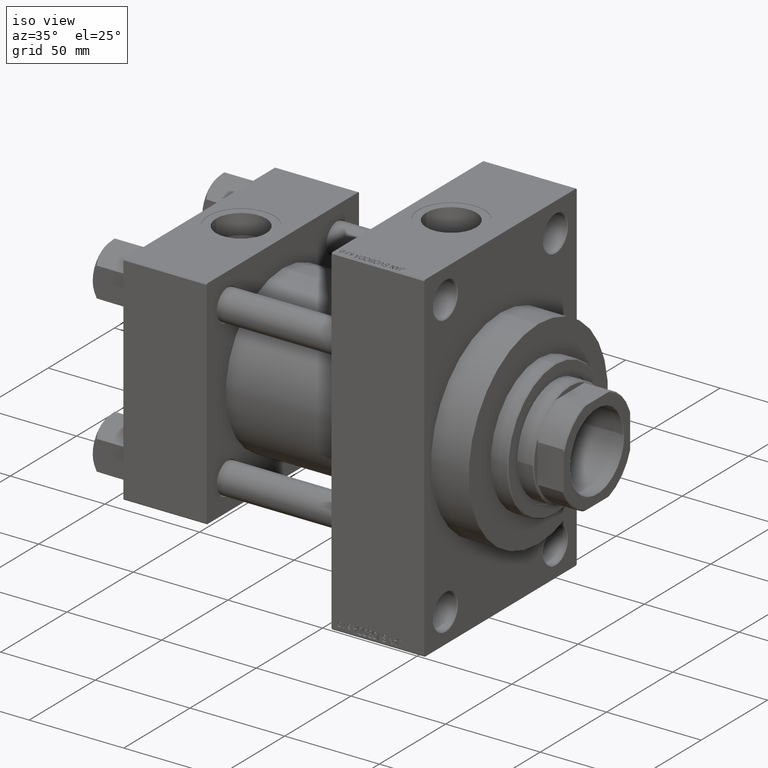
[diagram: clean part render]
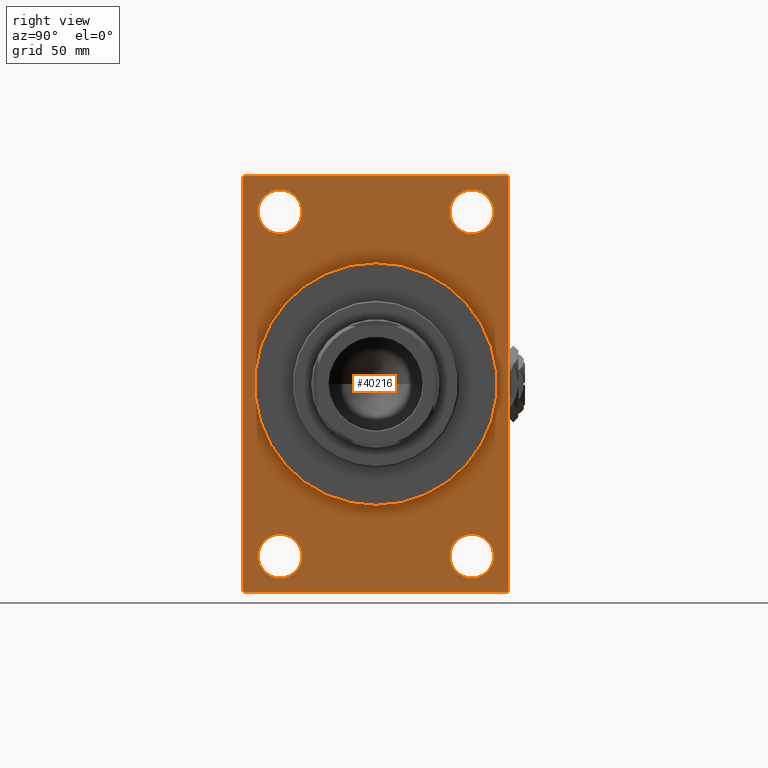
[diagram: tour spotlight — one face highlighted and labeled with its STEP entity id]
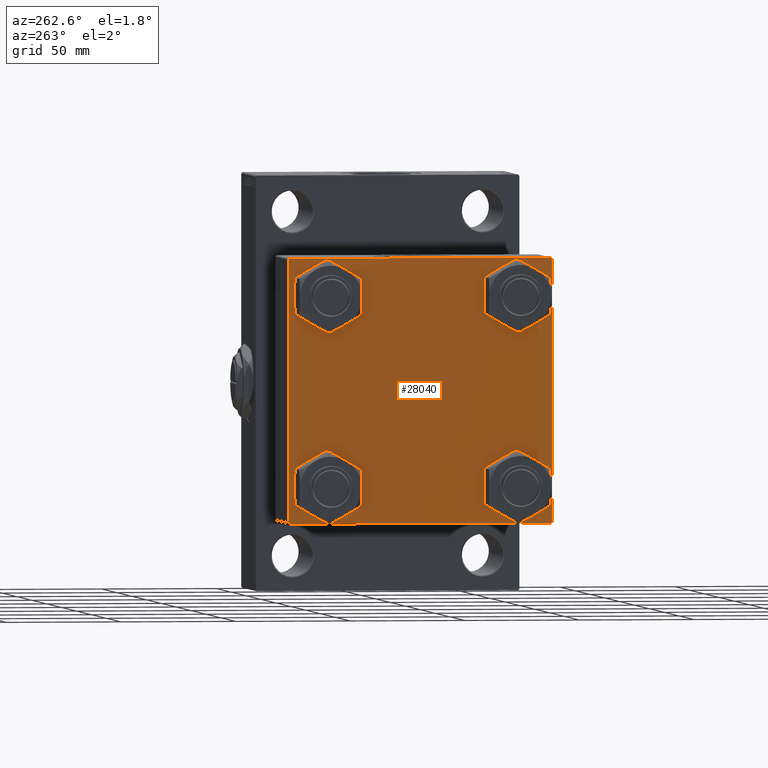
[diagram: tour spotlight — one face highlighted and labeled with its STEP entity id]
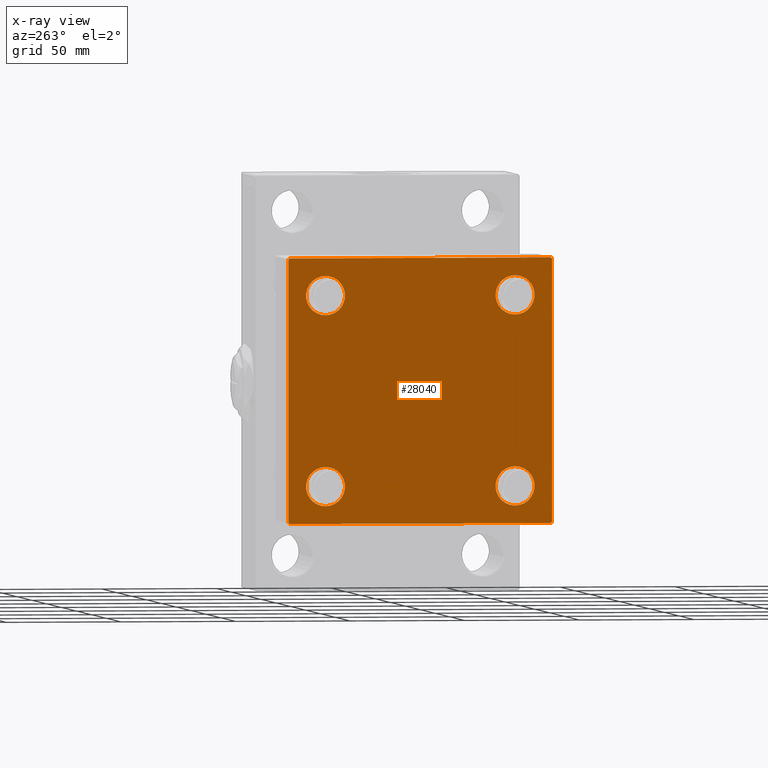
[diagram: x-ray of the same camera — body ghosted, this tour face saturated]
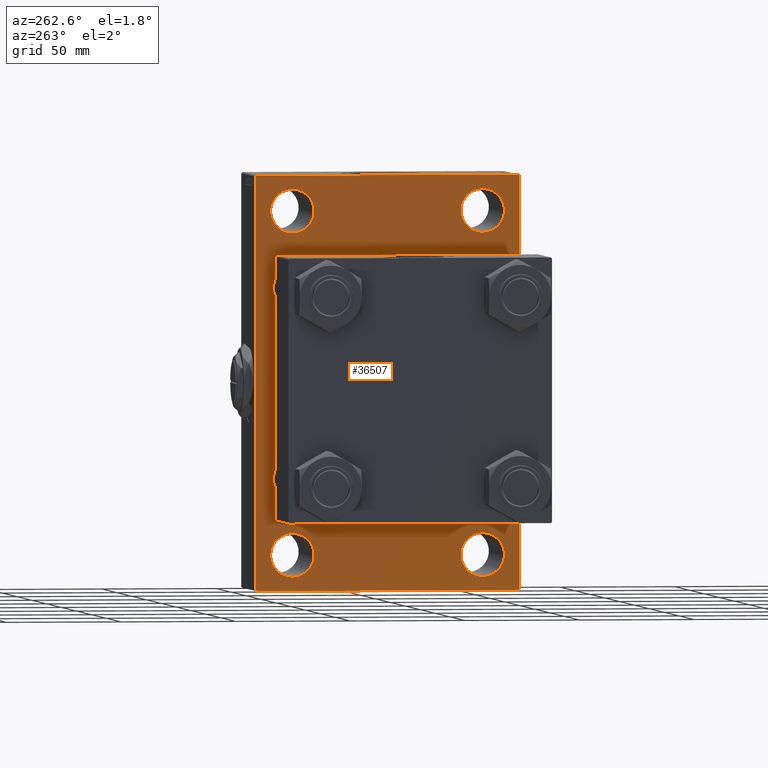
[diagram: tour spotlight — one face highlighted and labeled with its STEP entity id]
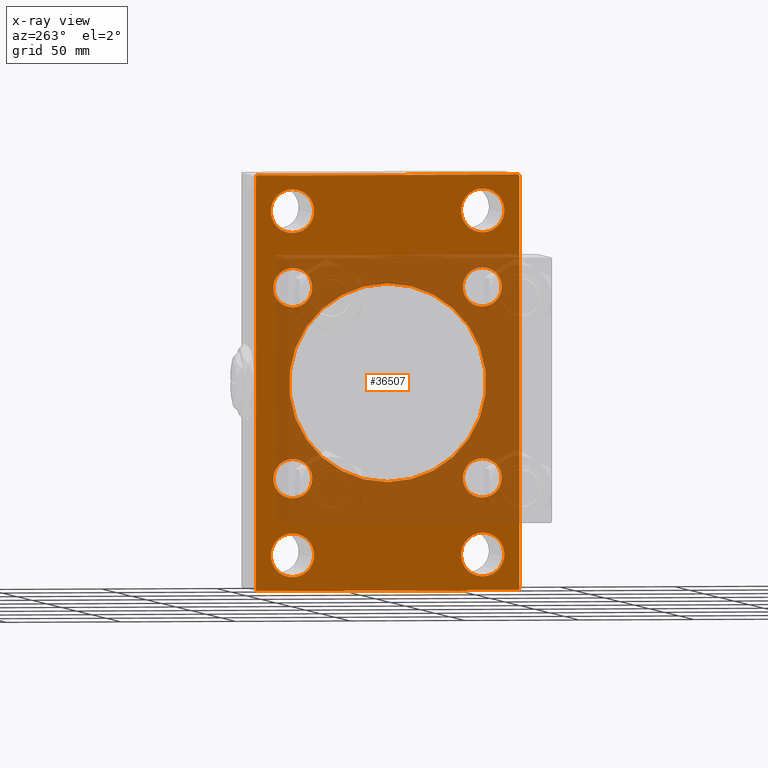
[diagram: x-ray of the same camera — body ghosted, this tour face saturated]
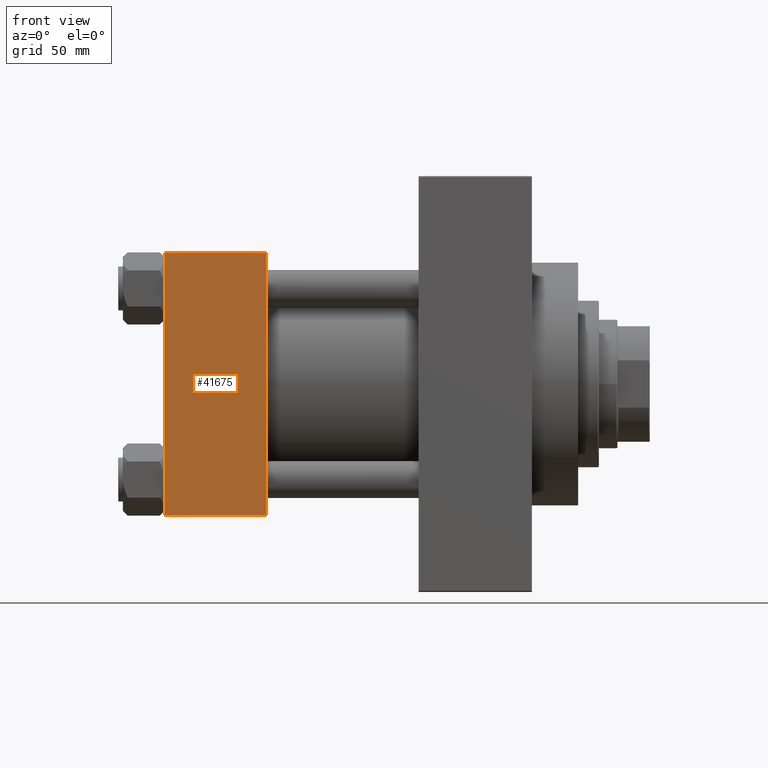
[diagram: tour spotlight — one face highlighted and labeled with its STEP entity id]
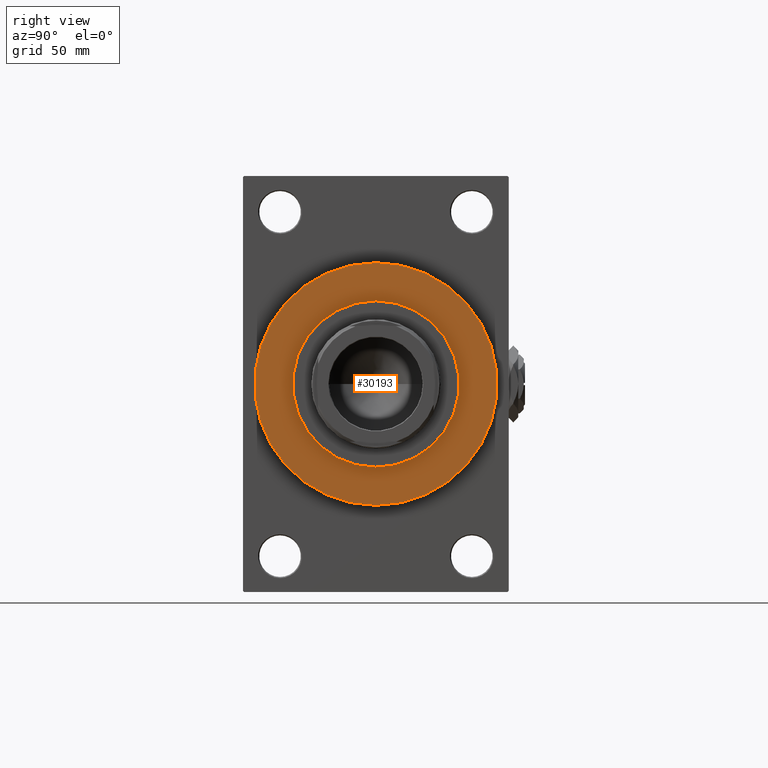
[diagram: tour spotlight — one face highlighted and labeled with its STEP entity id]
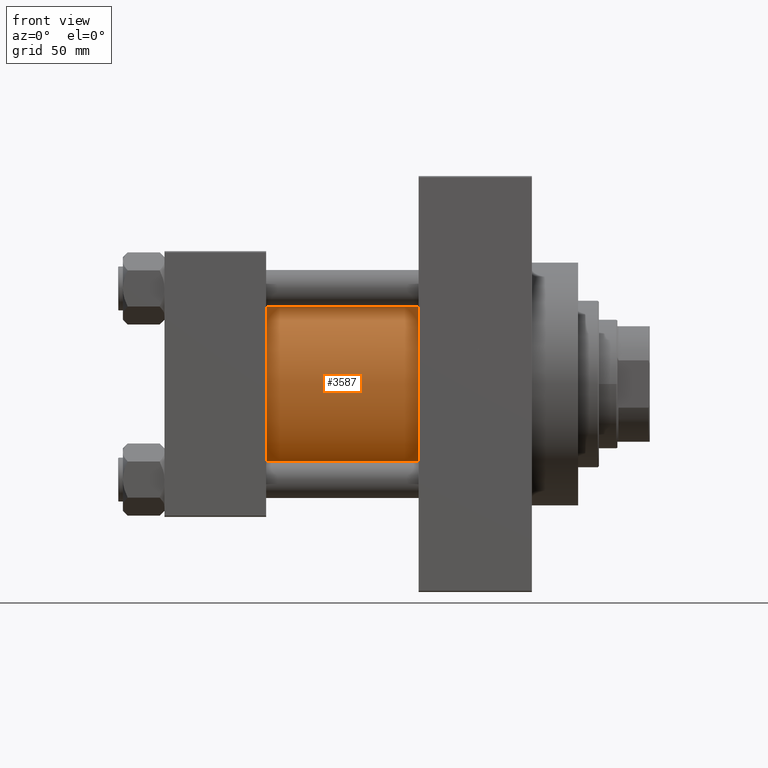
[diagram: tour spotlight — one face highlighted and labeled with its STEP entity id]
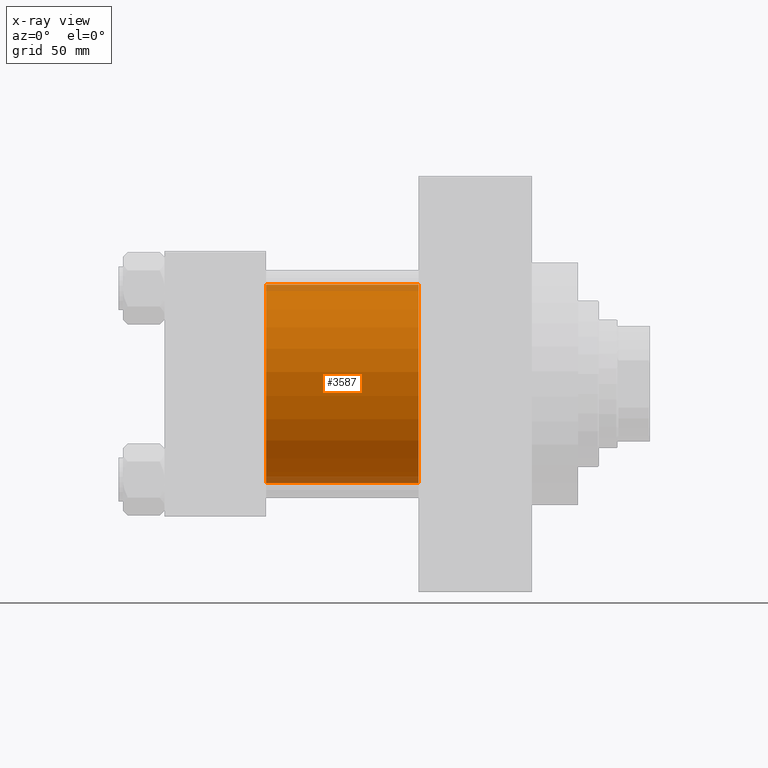
[diagram: x-ray of the same camera — body ghosted, this tour face saturated]
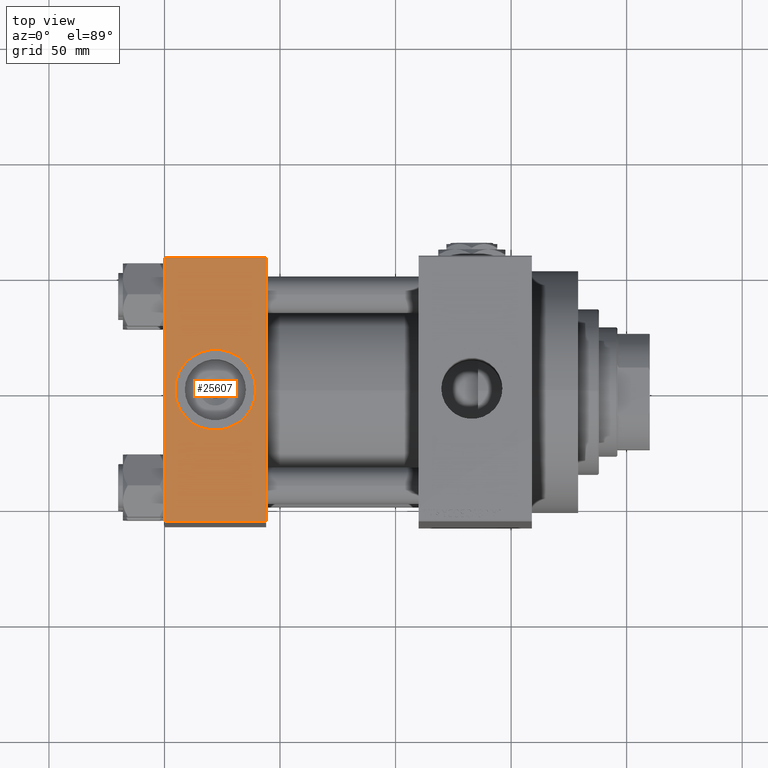
[diagram: tour spotlight — one face highlighted and labeled with its STEP entity id]
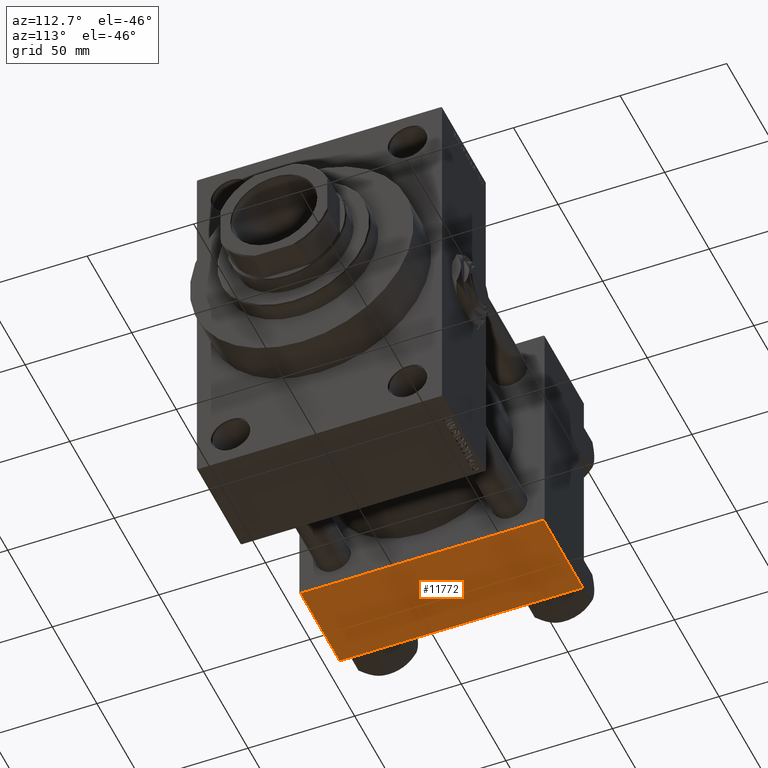
[diagram: tour spotlight — one face highlighted and labeled with its STEP entity id]
A machine part: a face-by-face anatomy tour. The part has 1196 B-rep faces; the first image is the clean iso view, then the 8 largest visible faces are spotlighted one at a time (largest first), each with its STEP entity span.

Face 1 — right view, entity #40216. In plain terms, the highlighted planar face has unit normal (-1, 0, 0).
Definition (entity closure, byte-faithful):
#7 = ORIENTED_EDGE ( 'NONE', *, *, #49056, .F. ) ;
#23 = CARTESIAN_POINT ( 'NONE',  ( 159.0000000000000000, -41.50000000000000711, -83.99999999999998579 ) ) ;
#664 = CARTESIAN_POINT ( 'NONE',  ( 159.0000000000000000, -41.50000000000000711, 65.00000000000000000 ) ) ;
#975 = CARTESIAN_POINT ( 'NONE',  ( 159.0000000000000000, 41.49999999999999289, 74.50000000000001421 ) ) ;
#1360 = DIRECTION ( 'NONE',  ( 0.000000000000000000, 0.000000000000000000, 1.000000000000000000 ) ) ;
#1535 = CARTESIAN_POINT ( 'NONE',  ( 159.0000000000000000, 57.50000000000000000, 90.00000000000000000 ) ) ;
#1605 = DIRECTION ( 'NONE',  ( -1.000000000000000000, -0.000000000000000000, -0.000000000000000000 ) ) ;
#1836 = CARTESIAN_POINT ( 'NONE',  ( 159.0000000000000000, -57.50000000000000000, 90.00000000000000000 ) ) ;
#2179 = VECTOR ( 'NONE', #44984, 1000.000000000000114 ) ;
#2417 = DIRECTION ( 'NONE',  ( 0.000000000000000000, 0.000000000000000000, 1.000000000000000000 ) ) ;
#2607 = EDGE_CURVE ( 'NONE', #43083, #45562, #29826, .T. ) ;
#2681 = EDGE_LOOP ( 'NONE', ( #6628, #11142 ) ) ;
#3598 = EDGE_CURVE ( 'NONE', #6361, #24800, #15820, .T. ) ;
#3793 = VERTEX_POINT ( 'NONE', #33541 ) ;
#4303 = EDGE_CURVE ( 'NONE', #44679, #6361, #24876, .T. ) ;
#4410 = AXIS2_PLACEMENT_3D ( 'NONE', #48722, #33958, #25731 ) ;
#4555 = DIRECTION ( 'NONE',  ( 0.000000000000000000, 0.000000000000000000, -1.000000000000000000 ) ) ;
#4563 = AXIS2_PLACEMENT_3D ( 'NONE', #38105, #11583, #4555 ) ;
#4585 = EDGE_CURVE ( 'NONE', #18927, #6149, #21101, .T. ) ;
#5043 = DIRECTION ( 'NONE',  ( 0.000000000000000000, -1.000000000000000000, 0.000000000000000000 ) ) ;
#5099 = CARTESIAN_POINT ( 'NONE',  ( 159.0000000000000000, -41.50000000000000711, -64.99999999999997158 ) ) ;
#5159 = ORIENTED_EDGE ( 'NONE', *, *, #4585, .F. ) ;
#5318 = CIRCLE ( 'NONE', #12493, 9.500000000000008882 ) ;
#5327 = CARTESIAN_POINT ( 'NONE',  ( 159.0000000000000000, 41.49999999999999289, 65.00000000000000000 ) ) ;
#5501 = ORIENTED_EDGE ( 'NONE', *, *, #11826, .T. ) ;
#5674 = CARTESIAN_POINT ( 'NONE',  ( 159.0000000000000000, 57.50000000000000000, -89.49999999999988631 ) ) ;
#5883 = CARTESIAN_POINT ( 'NONE',  ( 159.0000000000000000, -57.50000000000000000, 89.49999999999994316 ) ) ;
#6149 = VERTEX_POINT ( 'NONE', #19936 ) ;
#6332 = DIRECTION ( 'NONE',  ( 0.000000000000000000, 0.000000000000000000, -1.000000000000000000 ) ) ;
#6361 = VERTEX_POINT ( 'NONE', #26925 ) ;
#6574 = LINE ( 'NONE', #17834, #15672 ) ;
#6612 = EDGE_CURVE ( 'NONE', #45687, #31057, #36346, .T. ) ;
#6628 = ORIENTED_EDGE ( 'NONE', *, *, #43782, .T. ) ;
#7541 = CIRCLE ( 'NONE', #11975, 9.500000000000008882 ) ;
#7730 = ORIENTED_EDGE ( 'NONE', *, *, #13759, .T. ) ;
#8216 = ORIENTED_EDGE ( 'NONE', *, *, #45026, .F. ) ;
#9230 = CARTESIAN_POINT ( 'NONE',  ( 159.0000000000000000, 41.49999999999999289, -74.49999999999998579 ) ) ;
#9274 = DIRECTION ( 'NONE',  ( 0.000000000000000000, 0.000000000000000000, 1.000000000000000000 ) ) ;
#9372 = ORIENTED_EDGE ( 'NONE', *, *, #12283, .T. ) ;
#9379 = DIRECTION ( 'NONE',  ( -1.000000000000000000, -0.000000000000000000, -0.000000000000000000 ) ) ;
#9820 = ORIENTED_EDGE ( 'NONE', *, *, #38277, .F. ) ;
#9830 = DIRECTION ( 'NONE',  ( 0.000000000000000000, -0.7071067811865474617, 0.7071067811865474617 ) ) ;
#10189 = CARTESIAN_POINT ( 'NONE',  ( 159.0000000000000000, 41.49999999999999289, 74.50000000000001421 ) ) ;
#10475 = LINE ( 'NONE', #13724, #2179 ) ;
#10540 = AXIS2_PLACEMENT_3D ( 'NONE', #975, #43001, #43998 ) ;
#10682 = VECTOR ( 'NONE', #35797, 1000.000000000000114 ) ;
#11142 = ORIENTED_EDGE ( 'NONE', *, *, #13872, .T. ) ;
#11192 = FACE_BOUND ( 'NONE', #34221, .T. ) ;
#11432 = FACE_BOUND ( 'NONE', #39631, .T. ) ;
#11517 = CARTESIAN_POINT ( 'NONE',  ( 159.0000000000000000, 41.49999999999999289, -74.49999999999998579 ) ) ;
#11583 = DIRECTION ( 'NONE',  ( 1.000000000000000000, 0.000000000000000000, 0.000000000000000000 ) ) ;
#11766 = DIRECTION ( 'NONE',  ( -1.000000000000000000, -0.000000000000000000, -0.000000000000000000 ) ) ;
#11826 = EDGE_CURVE ( 'NONE', #33114, #33828, #12297, .T. ) ;
#11975 = AXIS2_PLACEMENT_3D ( 'NONE', #16379, #1605, #1360 ) ;
#12283 = EDGE_CURVE ( 'NONE', #31057, #45687, #7541, .T. ) ;
#12297 = LINE ( 'NONE', #1535, #49317 ) ;
#12493 = AXIS2_PLACEMENT_3D ( 'NONE', #40027, #28287, #9274 ) ;
#13364 = DIRECTION ( 'NONE',  ( 0.000000000000000000, 0.000000000000000000, -1.000000000000000000 ) ) ;
#13724 = CARTESIAN_POINT ( 'NONE',  ( 159.0000000000000000, 57.50000000000000000, -89.49999999999994316 ) ) ;
#13759 = EDGE_CURVE ( 'NONE', #45562, #43083, #39095, .T. ) ;
#13872 = EDGE_CURVE ( 'NONE', #21398, #21934, #36714, .T. ) ;
#13986 = DIRECTION ( 'NONE',  ( -1.000000000000000000, -0.000000000000000000, -0.000000000000000000 ) ) ;
#14071 = CIRCLE ( 'NONE', #37245, 9.500000000000008882 ) ;
#14434 = DIRECTION ( 'NONE',  ( -1.000000000000000000, -0.000000000000000000, -0.000000000000000000 ) ) ;
#14896 = VECTOR ( 'NONE', #5043, 1000.000000000000000 ) ;
#15672 = VECTOR ( 'NONE', #9830, 1000.000000000000114 ) ;
#15820 = LINE ( 'NONE', #31071, #10682 ) ;
#15910 = CARTESIAN_POINT ( 'NONE',  ( 159.0000000000000000, -56.99999999999994316, 90.00000000000000000 ) ) ;
#16379 = CARTESIAN_POINT ( 'NONE',  ( 159.0000000000000000, -41.50000000000000711, 74.50000000000001421 ) ) ;
#17408 = DIRECTION ( 'NONE',  ( -0.000000000000000000, -0.7071067811865474617, -0.7071067811865474617 ) ) ;
#17834 = CARTESIAN_POINT ( 'NONE',  ( 159.0000000000000000, 56.99999999999997158, 90.00000000000000000 ) ) ;
#18713 = VECTOR ( 'NONE', #13364, 1000.000000000000000 ) ;
#18927 = VERTEX_POINT ( 'NONE', #49014 ) ;
#18965 = CIRCLE ( 'NONE', #4563, 52.50000000000000000 ) ;
#19326 = LINE ( 'NONE', #23338, #14896 ) ;
#19936 = CARTESIAN_POINT ( 'NONE',  ( 159.0000000000000000, 6.429395695523603956E-15, -52.50000000000000000 ) ) ;
#21101 = CIRCLE ( 'NONE', #49063, 52.50000000000000000 ) ;
#21175 = AXIS2_PLACEMENT_3D ( 'NONE', #32135, #9379, #26862 ) ;
#21398 = VERTEX_POINT ( 'NONE', #5099 ) ;
#21934 = VERTEX_POINT ( 'NONE', #23 ) ;
#22165 = EDGE_CURVE ( 'NONE', #37665, #36179, #48847, .T. ) ;
#22191 = EDGE_LOOP ( 'NONE', ( #42647, #44315, #9820, #49250, #8216, #26440, #5501, #31535 ) ) ;
#23172 = VERTEX_POINT ( 'NONE', #5674 ) ;
#23338 = CARTESIAN_POINT ( 'NONE',  ( 159.0000000000000000, 57.50000000000000000, -90.00000000000000000 ) ) ;
#24800 = VERTEX_POINT ( 'NONE', #26282 ) ;
#24876 = LINE ( 'NONE', #1836, #18713 ) ;
#25731 = DIRECTION ( 'NONE',  ( -0.000000000000000000, 0.000000000000000000, 1.000000000000000000 ) ) ;
#26186 = VERTEX_POINT ( 'NONE', #41632 ) ;
#26247 = DIRECTION ( 'NONE',  ( 0.000000000000000000, 0.000000000000000000, 1.000000000000000000 ) ) ;
#26282 = CARTESIAN_POINT ( 'NONE',  ( 159.0000000000000000, -56.99999999999997158, -90.00000000000000000 ) ) ;
#26440 = ORIENTED_EDGE ( 'NONE', *, *, #36291, .T. ) ;
#26459 = PLANE ( 'NONE',  #4410 ) ;
#26862 = DIRECTION ( 'NONE',  ( 0.000000000000000000, 0.000000000000000000, 1.000000000000000000 ) ) ;
#26925 = CARTESIAN_POINT ( 'NONE',  ( 159.0000000000000000, -57.50000000000000000, -89.49999999999991473 ) ) ;
#27201 = CARTESIAN_POINT ( 'NONE',  ( 159.0000000000000000, 41.49999999999999289, 84.00000000000001421 ) ) ;
#27328 = DIRECTION ( 'NONE',  ( 1.000000000000000000, 0.000000000000000000, 0.000000000000000000 ) ) ;
#27759 = DIRECTION ( 'NONE',  ( -1.000000000000000000, -0.000000000000000000, -0.000000000000000000 ) ) ;
#28287 = DIRECTION ( 'NONE',  ( -1.000000000000000000, -0.000000000000000000, -0.000000000000000000 ) ) ;
#28427 = VECTOR ( 'NONE', #17408, 1000.000000000000114 ) ;
#28754 = DIRECTION ( 'NONE',  ( 0.000000000000000000, 0.000000000000000000, 1.000000000000000000 ) ) ;
#29545 = AXIS2_PLACEMENT_3D ( 'NONE', #9230, #27759, #28754 ) ;
#29718 = FACE_BOUND ( 'NONE', #2681, .T. ) ;
#29826 = CIRCLE ( 'NONE', #47382, 9.500000000000008882 ) ;
#30688 = FACE_OUTER_BOUND ( 'NONE', #22191, .T. ) ;
#31057 = VERTEX_POINT ( 'NONE', #42365 ) ;
#31071 = CARTESIAN_POINT ( 'NONE',  ( 159.0000000000000000, -56.99999999999997158, -90.00000000000000000 ) ) ;
#31318 = ORIENTED_EDGE ( 'NONE', *, *, #6612, .T. ) ;
#31535 = ORIENTED_EDGE ( 'NONE', *, *, #42097, .T. ) ;
#32100 = LINE ( 'NONE', #39851, #34776 ) ;
#32135 = CARTESIAN_POINT ( 'NONE',  ( 159.0000000000000000, -41.50000000000000711, 74.50000000000001421 ) ) ;
#33114 = VERTEX_POINT ( 'NONE', #40370 ) ;
#33541 = CARTESIAN_POINT ( 'NONE',  ( 159.0000000000000000, 56.99999999999994316, -90.00000000000000000 ) ) ;
#33803 = EDGE_CURVE ( 'NONE', #36179, #37665, #14071, .T. ) ;
#33828 = VERTEX_POINT ( 'NONE', #15910 ) ;
#33915 = ORIENTED_EDGE ( 'NONE', *, *, #33803, .T. ) ;
#33958 = DIRECTION ( 'NONE',  ( -1.000000000000000000, 0.000000000000000000, -0.000000000000000000 ) ) ;
#34221 = EDGE_LOOP ( 'NONE', ( #5159, #7 ) ) ;
#34776 = VECTOR ( 'NONE', #6332, 1000.000000000000000 ) ;
#35797 = DIRECTION ( 'NONE',  ( 0.000000000000000000, 0.7071067811865474617, -0.7071067811865474617 ) ) ;
#36179 = VERTEX_POINT ( 'NONE', #5327 ) ;
#36291 = EDGE_CURVE ( 'NONE', #26186, #33114, #6574, .T. ) ;
#36346 = CIRCLE ( 'NONE', #21175, 9.500000000000008882 ) ;
#36688 = EDGE_LOOP ( 'NONE', ( #33915, #39144 ) ) ;
#36714 = CIRCLE ( 'NONE', #49489, 9.500000000000008882 ) ;
#37245 = AXIS2_PLACEMENT_3D ( 'NONE', #10189, #14434, #2417 ) ;
#37248 = CARTESIAN_POINT ( 'NONE',  ( 159.0000000000000000, -41.50000000000000711, -74.49999999999998579 ) ) ;
#37665 = VERTEX_POINT ( 'NONE', #27201 ) ;
#38105 = CARTESIAN_POINT ( 'NONE',  ( 159.0000000000000000, 0.000000000000000000, 0.000000000000000000 ) ) ;
#38277 = EDGE_CURVE ( 'NONE', #3793, #24800, #19326, .T. ) ;
#39065 = CARTESIAN_POINT ( 'NONE',  ( 159.0000000000000000, -57.50000000000000000, 89.49999999999994316 ) ) ;
#39095 = CIRCLE ( 'NONE', #29545, 9.500000000000008882 ) ;
#39144 = ORIENTED_EDGE ( 'NONE', *, *, #22165, .T. ) ;
#39161 = ORIENTED_EDGE ( 'NONE', *, *, #2607, .T. ) ;
#39631 = EDGE_LOOP ( 'NONE', ( #7730, #39161 ) ) ;
#39851 = CARTESIAN_POINT ( 'NONE',  ( 159.0000000000000000, 57.50000000000000000, 90.00000000000000000 ) ) ;
#40027 = CARTESIAN_POINT ( 'NONE',  ( 159.0000000000000000, -41.50000000000000711, -74.49999999999998579 ) ) ;
#40216 = ADVANCED_FACE ( 'NONE', ( #41223, #29718, #11432, #45467, #11192, #30688 ), #26459, .F. ) ;
#40223 = CARTESIAN_POINT ( 'NONE',  ( 159.0000000000000000, 41.49999999999999289, -83.99999999999998579 ) ) ;
#40370 = CARTESIAN_POINT ( 'NONE',  ( 159.0000000000000000, 56.99999999999997158, 90.00000000000000000 ) ) ;
#40909 = CARTESIAN_POINT ( 'NONE',  ( 159.0000000000000000, 41.49999999999999289, -64.99999999999997158 ) ) ;
#41047 = DIRECTION ( 'NONE',  ( 0.000000000000000000, 0.000000000000000000, 1.000000000000000000 ) ) ;
#41223 = FACE_BOUND ( 'NONE', #45670, .T. ) ;
#41632 = CARTESIAN_POINT ( 'NONE',  ( 159.0000000000000000, 57.50000000000000000, 89.49999999999997158 ) ) ;
#42097 = EDGE_CURVE ( 'NONE', #33828, #44679, #47411, .T. ) ;
#42365 = CARTESIAN_POINT ( 'NONE',  ( 159.0000000000000000, -41.50000000000000711, 84.00000000000001421 ) ) ;
#42647 = ORIENTED_EDGE ( 'NONE', *, *, #4303, .T. ) ;
#42813 = DIRECTION ( 'NONE',  ( 0.000000000000000000, 0.000000000000000000, -1.000000000000000000 ) ) ;
#43001 = DIRECTION ( 'NONE',  ( -1.000000000000000000, -0.000000000000000000, -0.000000000000000000 ) ) ;
#43083 = VERTEX_POINT ( 'NONE', #40909 ) ;
#43559 = DIRECTION ( 'NONE',  ( 0.000000000000000000, -1.000000000000000000, 0.000000000000000000 ) ) ;
#43782 = EDGE_CURVE ( 'NONE', #21934, #21398, #5318, .T. ) ;
#43998 = DIRECTION ( 'NONE',  ( 0.000000000000000000, 0.000000000000000000, 1.000000000000000000 ) ) ;
#44315 = ORIENTED_EDGE ( 'NONE', *, *, #3598, .T. ) ;
#44679 = VERTEX_POINT ( 'NONE', #39065 ) ;
#44984 = DIRECTION ( 'NONE',  ( -0.000000000000000000, 0.7071067811865474617, 0.7071067811865474617 ) ) ;
#45026 = EDGE_CURVE ( 'NONE', #26186, #23172, #32100, .T. ) ;
#45467 = FACE_BOUND ( 'NONE', #36688, .T. ) ;
#45562 = VERTEX_POINT ( 'NONE', #40223 ) ;
#45670 = EDGE_LOOP ( 'NONE', ( #31318, #9372 ) ) ;
#45687 = VERTEX_POINT ( 'NONE', #664 ) ;
#47382 = AXIS2_PLACEMENT_3D ( 'NONE', #11517, #11766, #41047 ) ;
#47411 = LINE ( 'NONE', #5883, #28427 ) ;
#47562 = CARTESIAN_POINT ( 'NONE',  ( 159.0000000000000000, 0.000000000000000000, 0.000000000000000000 ) ) ;
#48676 = EDGE_CURVE ( 'NONE', #3793, #23172, #10475, .T. ) ;
#48722 = CARTESIAN_POINT ( 'NONE',  ( 159.0000000000000000, 0.000000000000000000, 0.000000000000000000 ) ) ;
#48847 = CIRCLE ( 'NONE', #10540, 9.500000000000008882 ) ;
#49014 = CARTESIAN_POINT ( 'NONE',  ( 159.0000000000000000, 0.000000000000000000, 52.50000000000000000 ) ) ;
#49056 = EDGE_CURVE ( 'NONE', #6149, #18927, #18965, .T. ) ;
#49063 = AXIS2_PLACEMENT_3D ( 'NONE', #47562, #27328, #42813 ) ;
#49250 = ORIENTED_EDGE ( 'NONE', *, *, #48676, .T. ) ;
#49317 = VECTOR ( 'NONE', #43559, 1000.000000000000000 ) ;
#49489 = AXIS2_PLACEMENT_3D ( 'NONE', #37248, #13986, #26247 ) ;

Face 2 — auxiliary view, entity #28040. An x-ray twin of the same camera follows (body ghosted, this face saturated) — the face is partly hidden behind the body. In plain terms, the highlighted planar face has unit normal (-1, 0, 0).
Definition (entity closure, byte-faithful):
#367 = EDGE_CURVE ( 'NONE', #22387, #33941, #6571, .T. ) ;
#429 = ORIENTED_EDGE ( 'NONE', *, *, #20965, .T. ) ;
#455 = EDGE_CURVE ( 'NONE', #15567, #19629, #37439, .T. ) ;
#797 = CARTESIAN_POINT ( 'NONE',  ( 0.000000000000000000, -56.99999999999997158, 57.49999999999999289 ) ) ;
#1657 = EDGE_CURVE ( 'NONE', #29673, #47187, #47343, .T. ) ;
#1772 = LINE ( 'NONE', #9285, #23718 ) ;
#1903 = VERTEX_POINT ( 'NONE', #32427 ) ;
#2016 = FACE_OUTER_BOUND ( 'NONE', #38211, .T. ) ;
#2374 = CARTESIAN_POINT ( 'NONE',  ( 0.000000000000000000, -57.50000000000000000, 57.49999999999999289 ) ) ;
#2940 = AXIS2_PLACEMENT_3D ( 'NONE', #5465, #27739, #19969 ) ;
#3090 = ORIENTED_EDGE ( 'NONE', *, *, #48412, .T. ) ;
#3580 = DIRECTION ( 'NONE',  ( 1.000000000000000000, -0.000000000000000000, 0.000000000000000000 ) ) ;
#3866 = VERTEX_POINT ( 'NONE', #23259 ) ;
#3896 = CARTESIAN_POINT ( 'NONE',  ( 0.000000000000000000, 41.34999999999999432, 32.85000000000000142 ) ) ;
#4404 = AXIS2_PLACEMENT_3D ( 'NONE', #13833, #24860, #32607 ) ;
#4659 = VERTEX_POINT ( 'NONE', #797 ) ;
#5111 = ORIENTED_EDGE ( 'NONE', *, *, #35994, .F. ) ;
#5465 = CARTESIAN_POINT ( 'NONE',  ( 0.000000000000000000, -41.34999999999998721, 41.35000000000000142 ) ) ;
#5686 = LINE ( 'NONE', #24214, #12072 ) ;
#5764 = DIRECTION ( 'NONE',  ( 1.000000000000000000, -0.000000000000000000, 0.000000000000000000 ) ) ;
#6021 = DIRECTION ( 'NONE',  ( 0.000000000000000000, 0.000000000000000000, 1.000000000000000000 ) ) ;
#6421 = CARTESIAN_POINT ( 'NONE',  ( 0.000000000000000000, 41.34999999999999432, -41.34999999999999432 ) ) ;
#6571 = CIRCLE ( 'NONE', #19345, 8.499999999999992895 ) ;
#6599 = CARTESIAN_POINT ( 'NONE',  ( 0.000000000000000000, 41.34999999999999432, 41.34999999999999432 ) ) ;
#6705 = CARTESIAN_POINT ( 'NONE',  ( 0.000000000000000000, -41.34999999999998721, -41.35000000000000142 ) ) ;
#6941 = CIRCLE ( 'NONE', #44502, 8.499999999999992895 ) ;
#7439 = EDGE_LOOP ( 'NONE', ( #18872, #429 ) ) ;
#8475 = DIRECTION ( 'NONE',  ( 1.000000000000000000, -0.000000000000000000, 0.000000000000000000 ) ) ;
#8709 = CARTESIAN_POINT ( 'NONE',  ( -0.000000000000000000, -57.24999999999918998, 57.25000000000078160 ) ) ;
#9278 = DIRECTION ( 'NONE',  ( -1.000000000000000000, 0.000000000000000000, -0.000000000000000000 ) ) ;
#9285 = CARTESIAN_POINT ( 'NONE',  ( 0.000000000000000000, 57.50000000000000000, 57.50000000000001421 ) ) ;
#9389 = AXIS2_PLACEMENT_3D ( 'NONE', #6599, #3580, #37854 ) ;
#9524 = CARTESIAN_POINT ( 'NONE',  ( 0.000000000000000000, -41.34999999999998721, -41.35000000000000142 ) ) ;
#9741 = EDGE_CURVE ( 'NONE', #35751, #4659, #14517, .T. ) ;
#9783 = AXIS2_PLACEMENT_3D ( 'NONE', #9524, #5764, #6021 ) ;
#9797 = CARTESIAN_POINT ( 'NONE',  ( 0.000000000000000000, 57.00000000000002842, -57.49999999999999289 ) ) ;
#11167 = CARTESIAN_POINT ( 'NONE',  ( 0.000000000000000000, 57.50000000000000000, -57.49999999999999289 ) ) ;
#11503 = EDGE_CURVE ( 'NONE', #35751, #3866, #23883, .T. ) ;
#11729 = DIRECTION ( 'NONE',  ( 1.000000000000000000, -0.000000000000000000, 0.000000000000000000 ) ) ;
#12072 = VECTOR ( 'NONE', #39208, 1000.000000000000000 ) ;
#12610 = CARTESIAN_POINT ( 'NONE',  ( 0.000000000000000000, 57.24999999999922551, 57.25000000000081712 ) ) ;
#12795 = CARTESIAN_POINT ( 'NONE',  ( 0.000000000000000000, 57.25000000000119371, -57.24999999999880629 ) ) ;
#13026 = PLANE ( 'NONE',  #34659 ) ;
#13124 = CARTESIAN_POINT ( 'NONE',  ( 0.000000000000000000, 41.34999999999999432, -49.84999999999999432 ) ) ;
#13178 = DIRECTION ( 'NONE',  ( 0.000000000000000000, 0.000000000000000000, 1.000000000000000000 ) ) ;
#13833 = CARTESIAN_POINT ( 'NONE',  ( 0.000000000000000000, -41.34999999999998721, 41.35000000000000142 ) ) ;
#14023 = AXIS2_PLACEMENT_3D ( 'NONE', #26023, #11729, #33520 ) ;
#14074 = VECTOR ( 'NONE', #37031, 1000.000000000000000 ) ;
#14277 = CARTESIAN_POINT ( 'NONE',  ( 0.000000000000000000, 57.50000000000000000, 57.50000000000001421 ) ) ;
#14517 = LINE ( 'NONE', #14277, #14074 ) ;
#14753 = ORIENTED_EDGE ( 'NONE', *, *, #17725, .T. ) ;
#14828 = CIRCLE ( 'NONE', #4404, 8.499999999999992895 ) ;
#15061 = VERTEX_POINT ( 'NONE', #3896 ) ;
#15567 = VERTEX_POINT ( 'NONE', #9797 ) ;
#15747 = VECTOR ( 'NONE', #27870, 1000.000000000000114 ) ;
#15855 = VERTEX_POINT ( 'NONE', #31266 ) ;
#15987 = LINE ( 'NONE', #8709, #17211 ) ;
#16738 = DIRECTION ( 'NONE',  ( 0.000000000000000000, 0.000000000000000000, 1.000000000000000000 ) ) ;
#17211 = VECTOR ( 'NONE', #39473, 999.9999999999998863 ) ;
#17645 = DIRECTION ( 'NONE',  ( 0.000000000000000000, 6.033820786006285224E-17, -1.000000000000000000 ) ) ;
#17725 = EDGE_CURVE ( 'NONE', #19629, #38568, #5686, .T. ) ;
#18612 = ORIENTED_EDGE ( 'NONE', *, *, #11503, .T. ) ;
#18872 = ORIENTED_EDGE ( 'NONE', *, *, #1657, .T. ) ;
#19345 = AXIS2_PLACEMENT_3D ( 'NONE', #6421, #47947, #13178 ) ;
#19629 = VERTEX_POINT ( 'NONE', #32280 ) ;
#19969 = DIRECTION ( 'NONE',  ( 0.000000000000000000, 0.000000000000000000, 1.000000000000000000 ) ) ;
#20401 = CIRCLE ( 'NONE', #14023, 8.499999999999992895 ) ;
#20788 = FACE_BOUND ( 'NONE', #40522, .T. ) ;
#20804 = DIRECTION ( 'NONE',  ( -0.000000000000000000, -0.7071067811865328068, -0.7071067811865622277 ) ) ;
#20965 = EDGE_CURVE ( 'NONE', #47187, #29673, #45636, .T. ) ;
#21823 = EDGE_CURVE ( 'NONE', #24605, #15567, #43064, .T. ) ;
#21982 = DIRECTION ( 'NONE',  ( 1.000000000000000000, -0.000000000000000000, 0.000000000000000000 ) ) ;
#22387 = VERTEX_POINT ( 'NONE', #35880 ) ;
#22558 = EDGE_LOOP ( 'NONE', ( #41135, #40462 ) ) ;
#23259 = CARTESIAN_POINT ( 'NONE',  ( 0.000000000000000000, 57.50000000000000000, 57.00000000000004263 ) ) ;
#23718 = VECTOR ( 'NONE', #24566, 1000.000000000000000 ) ;
#23883 = LINE ( 'NONE', #12610, #15747 ) ;
#24214 = CARTESIAN_POINT ( 'NONE',  ( 0.000000000000000000, -57.24999999999962341, -57.25000000000041211 ) ) ;
#24566 = DIRECTION ( 'NONE',  ( 0.000000000000000000, 0.000000000000000000, -1.000000000000000000 ) ) ;
#24605 = VERTEX_POINT ( 'NONE', #32283 ) ;
#24860 = DIRECTION ( 'NONE',  ( 1.000000000000000000, -0.000000000000000000, 0.000000000000000000 ) ) ;
#26023 = CARTESIAN_POINT ( 'NONE',  ( 0.000000000000000000, 41.34999999999999432, -41.34999999999999432 ) ) ;
#26905 = CIRCLE ( 'NONE', #2940, 8.499999999999992895 ) ;
#27739 = DIRECTION ( 'NONE',  ( 1.000000000000000000, -0.000000000000000000, 0.000000000000000000 ) ) ;
#27749 = CARTESIAN_POINT ( 'NONE',  ( 0.000000000000000000, 41.34999999999999432, 41.34999999999999432 ) ) ;
#27870 = DIRECTION ( 'NONE',  ( 0.000000000000000000, 0.7071067811865573427, -0.7071067811865376918 ) ) ;
#27964 = ORIENTED_EDGE ( 'NONE', *, *, #455, .T. ) ;
#28040 = ADVANCED_FACE ( 'NONE', ( #38804, #34097, #49342, #20788, #2016 ), #13026, .T. ) ;
#28139 = ORIENTED_EDGE ( 'NONE', *, *, #367, .T. ) ;
#29673 = VERTEX_POINT ( 'NONE', #31026 ) ;
#30152 = CIRCLE ( 'NONE', #9389, 8.499999999999992895 ) ;
#30461 = AXIS2_PLACEMENT_3D ( 'NONE', #6705, #21982, #37230 ) ;
#30851 = CARTESIAN_POINT ( 'NONE',  ( 0.000000000000000000, -41.34999999999998721, -49.85000000000000142 ) ) ;
#30910 = ORIENTED_EDGE ( 'NONE', *, *, #9741, .F. ) ;
#31026 = CARTESIAN_POINT ( 'NONE',  ( 0.000000000000000000, -41.34999999999998721, -32.85000000000000853 ) ) ;
#31266 = CARTESIAN_POINT ( 'NONE',  ( 0.000000000000000000, -41.34999999999998721, 49.85000000000000142 ) ) ;
#31619 = VECTOR ( 'NONE', #17645, 1000.000000000000000 ) ;
#32025 = VERTEX_POINT ( 'NONE', #33105 ) ;
#32085 = VECTOR ( 'NONE', #20804, 1000.000000000000000 ) ;
#32280 = CARTESIAN_POINT ( 'NONE',  ( 0.000000000000000000, -57.00000000000001421, -57.50000000000000711 ) ) ;
#32283 = CARTESIAN_POINT ( 'NONE',  ( 0.000000000000000000, 57.50000000000000000, -56.99999999999997158 ) ) ;
#32427 = CARTESIAN_POINT ( 'NONE',  ( 0.000000000000000000, -41.34999999999998721, 32.85000000000000853 ) ) ;
#32607 = DIRECTION ( 'NONE',  ( 0.000000000000000000, 0.000000000000000000, 1.000000000000000000 ) ) ;
#33105 = CARTESIAN_POINT ( 'NONE',  ( 0.000000000000000000, 41.34999999999999432, 49.84999999999999432 ) ) ;
#33433 = ORIENTED_EDGE ( 'NONE', *, *, #48896, .T. ) ;
#33520 = DIRECTION ( 'NONE',  ( 0.000000000000000000, 0.000000000000000000, 1.000000000000000000 ) ) ;
#33941 = VERTEX_POINT ( 'NONE', #13124 ) ;
#34097 = FACE_BOUND ( 'NONE', #7439, .T. ) ;
#34255 = EDGE_LOOP ( 'NONE', ( #28139, #49171 ) ) ;
#34659 = AXIS2_PLACEMENT_3D ( 'NONE', #40031, #9278, #39793 ) ;
#35751 = VERTEX_POINT ( 'NONE', #43773 ) ;
#35769 = EDGE_CURVE ( 'NONE', #33941, #22387, #20401, .T. ) ;
#35880 = CARTESIAN_POINT ( 'NONE',  ( 0.000000000000000000, 41.34999999999999432, -32.85000000000000142 ) ) ;
#35994 = EDGE_CURVE ( 'NONE', #48575, #38568, #40898, .T. ) ;
#37031 = DIRECTION ( 'NONE',  ( 0.000000000000000000, -1.000000000000000000, -1.810146235801885567E-16 ) ) ;
#37099 = ORIENTED_EDGE ( 'NONE', *, *, #21823, .T. ) ;
#37230 = DIRECTION ( 'NONE',  ( 0.000000000000000000, 0.000000000000000000, 1.000000000000000000 ) ) ;
#37439 = LINE ( 'NONE', #11167, #45033 ) ;
#37854 = DIRECTION ( 'NONE',  ( 0.000000000000000000, 0.000000000000000000, 1.000000000000000000 ) ) ;
#38123 = ORIENTED_EDGE ( 'NONE', *, *, #45339, .T. ) ;
#38211 = EDGE_LOOP ( 'NONE', ( #48642, #37099, #27964, #14753, #5111, #38123, #30910, #18612 ) ) ;
#38568 = VERTEX_POINT ( 'NONE', #47199 ) ;
#38804 = FACE_BOUND ( 'NONE', #22558, .T. ) ;
#39208 = DIRECTION ( 'NONE',  ( 0.000000000000000000, -0.7071067811865524577, 0.7071067811865426878 ) ) ;
#39473 = DIRECTION ( 'NONE',  ( -0.000000000000000000, 0.7071067811865574537, 0.7071067811865376918 ) ) ;
#39793 = DIRECTION ( 'NONE',  ( -0.000000000000000000, 0.000000000000000000, 1.000000000000000000 ) ) ;
#40031 = CARTESIAN_POINT ( 'NONE',  ( 0.000000000000000000, 0.000000000000000000, 0.000000000000000000 ) ) ;
#40462 = ORIENTED_EDGE ( 'NONE', *, *, #45048, .T. ) ;
#40522 = EDGE_LOOP ( 'NONE', ( #33433, #3090 ) ) ;
#40742 = CARTESIAN_POINT ( 'NONE',  ( 0.000000000000000000, -57.50000000000000000, 56.99999999999997868 ) ) ;
#40898 = LINE ( 'NONE', #2374, #31619 ) ;
#41135 = ORIENTED_EDGE ( 'NONE', *, *, #44096, .T. ) ;
#43064 = LINE ( 'NONE', #12795, #32085 ) ;
#43773 = CARTESIAN_POINT ( 'NONE',  ( 0.000000000000000000, 57.00000000000001421, 57.50000000000001421 ) ) ;
#44096 = EDGE_CURVE ( 'NONE', #15855, #1903, #26905, .T. ) ;
#44502 = AXIS2_PLACEMENT_3D ( 'NONE', #27749, #8475, #16738 ) ;
#45033 = VECTOR ( 'NONE', #49425, 1000.000000000000000 ) ;
#45048 = EDGE_CURVE ( 'NONE', #1903, #15855, #14828, .T. ) ;
#45339 = EDGE_CURVE ( 'NONE', #48575, #4659, #15987, .T. ) ;
#45636 = CIRCLE ( 'NONE', #30461, 8.499999999999992895 ) ;
#47187 = VERTEX_POINT ( 'NONE', #30851 ) ;
#47199 = CARTESIAN_POINT ( 'NONE',  ( 0.000000000000000000, -57.49999999999999289, -57.00000000000003553 ) ) ;
#47343 = CIRCLE ( 'NONE', #9783, 8.499999999999992895 ) ;
#47947 = DIRECTION ( 'NONE',  ( 1.000000000000000000, -0.000000000000000000, 0.000000000000000000 ) ) ;
#48081 = EDGE_CURVE ( 'NONE', #3866, #24605, #1772, .T. ) ;
#48412 = EDGE_CURVE ( 'NONE', #15061, #32025, #6941, .T. ) ;
#48575 = VERTEX_POINT ( 'NONE', #40742 ) ;
#48642 = ORIENTED_EDGE ( 'NONE', *, *, #48081, .T. ) ;
#48896 = EDGE_CURVE ( 'NONE', #32025, #15061, #30152, .T. ) ;
#49171 = ORIENTED_EDGE ( 'NONE', *, *, #35769, .T. ) ;
#49342 = FACE_BOUND ( 'NONE', #34255, .T. ) ;
#49425 = DIRECTION ( 'NONE',  ( 0.000000000000000000, -1.000000000000000000, -1.206764157201257291E-16 ) ) ;

Face 3 — auxiliary view, entity #36507. An x-ray twin of the same camera follows (body ghosted, this face saturated) — the face is partly hidden behind the body. In plain terms, the highlighted planar face has unit normal (-1, 0, 0).
Definition (entity closure, byte-faithful):
#189 = EDGE_CURVE ( 'NONE', #10557, #28650, #17868, .T. ) ;
#432 = DIRECTION ( 'NONE',  ( 0.000000000000000000, 0.000000000000000000, 1.000000000000000000 ) ) ;
#531 = VERTEX_POINT ( 'NONE', #19236 ) ;
#588 = EDGE_CURVE ( 'NONE', #35428, #906, #22759, .T. ) ;
#732 = CARTESIAN_POINT ( 'NONE',  ( 110.0000000000000000, -41.34999999999998721, -41.35000000000000142 ) ) ;
#796 = DIRECTION ( 'NONE',  ( 0.000000000000000000, 0.000000000000000000, -1.000000000000000000 ) ) ;
#906 = VERTEX_POINT ( 'NONE', #11681 ) ;
#1207 = EDGE_CURVE ( 'NONE', #13389, #40207, #4979, .T. ) ;
#1263 = FACE_BOUND ( 'NONE', #33571, .T. ) ;
#1363 = VERTEX_POINT ( 'NONE', #13346 ) ;
#1524 = CIRCLE ( 'NONE', #35847, 9.500000000000035527 ) ;
#1631 = VERTEX_POINT ( 'NONE', #44039 ) ;
#1774 = CARTESIAN_POINT ( 'NONE',  ( 110.0000000000000000, -41.34999999999998721, 32.84999999999999432 ) ) ;
#2065 = VECTOR ( 'NONE', #8158, 1000.000000000000114 ) ;
#2153 = DIRECTION ( 'NONE',  ( 1.000000000000000000, 0.000000000000000000, 0.000000000000000000 ) ) ;
#2370 = VERTEX_POINT ( 'NONE', #24068 ) ;
#2453 = CARTESIAN_POINT ( 'NONE',  ( 110.0000000000000000, 57.50000000000000000, 90.00000000000000000 ) ) ;
#2486 = VERTEX_POINT ( 'NONE', #13541 ) ;
#2512 = CARTESIAN_POINT ( 'NONE',  ( 110.0000000000000000, 41.49999999999999289, -74.49999999999998579 ) ) ;
#3314 = AXIS2_PLACEMENT_3D ( 'NONE', #46826, #15834, #796 ) ;
#3664 = AXIS2_PLACEMENT_3D ( 'NONE', #40814, #47819, #33060 ) ;
#3734 = DIRECTION ( 'NONE',  ( 0.000000000000000000, -0.7071067811865474617, 0.7071067811865474617 ) ) ;
#3807 = CARTESIAN_POINT ( 'NONE',  ( 110.0000000000000000, 73.49999999999997158, 73.49999999999997158 ) ) ;
#3934 = ORIENTED_EDGE ( 'NONE', *, *, #17548, .T. ) ;
#4095 = DIRECTION ( 'NONE',  ( 0.000000000000000000, 0.000000000000000000, 1.000000000000000000 ) ) ;
#4199 = ORIENTED_EDGE ( 'NONE', *, *, #6004, .T. ) ;
#4427 = DIRECTION ( 'NONE',  ( 1.000000000000000000, 0.000000000000000000, 0.000000000000000000 ) ) ;
#4933 = VERTEX_POINT ( 'NONE', #7761 ) ;
#4935 = AXIS2_PLACEMENT_3D ( 'NONE', #30452, #45468, #26953 ) ;
#4979 = CIRCLE ( 'NONE', #19380, 8.500000000000007105 ) ;
#4984 = VERTEX_POINT ( 'NONE', #43498 ) ;
#4996 = ORIENTED_EDGE ( 'NONE', *, *, #189, .T. ) ;
#5161 = AXIS2_PLACEMENT_3D ( 'NONE', #32576, #14312, #29323 ) ;
#5271 = FACE_BOUND ( 'NONE', #23445, .T. ) ;
#5721 = EDGE_CURVE ( 'NONE', #13218, #12753, #21973, .T. ) ;
#5760 = FACE_BOUND ( 'NONE', #28183, .T. ) ;
#6004 = EDGE_CURVE ( 'NONE', #48326, #13444, #49245, .T. ) ;
#6566 = ORIENTED_EDGE ( 'NONE', *, *, #21745, .T. ) ;
#6580 = VERTEX_POINT ( 'NONE', #48135 ) ;
#6725 = DIRECTION ( 'NONE',  ( 0.000000000000000000, 0.000000000000000000, -1.000000000000000000 ) ) ;
#6894 = AXIS2_PLACEMENT_3D ( 'NONE', #33129, #29386, #44635 ) ;
#7093 = DIRECTION ( 'NONE',  ( 1.000000000000000000, 0.000000000000000000, 0.000000000000000000 ) ) ;
#7217 = LINE ( 'NONE', #40995, #24726 ) ;
#7706 = CARTESIAN_POINT ( 'NONE',  ( 110.0000000000000000, -73.49999999999995737, 73.49999999999995737 ) ) ;
#7720 = CARTESIAN_POINT ( 'NONE',  ( 110.0000000000000000, -41.50000000000000711, 74.50000000000001421 ) ) ;
#7761 = CARTESIAN_POINT ( 'NONE',  ( 110.0000000000000000, 57.50000000000000000, 89.49999999999997158 ) ) ;
#8053 = ORIENTED_EDGE ( 'NONE', *, *, #14033, .T. ) ;
#8158 = DIRECTION ( 'NONE',  ( -0.000000000000000000, -0.7071067811865474617, -0.7071067811865474617 ) ) ;
#8162 = VERTEX_POINT ( 'NONE', #23731 ) ;
#8590 = EDGE_CURVE ( 'NONE', #44817, #41722, #31634, .T. ) ;
#8634 = CARTESIAN_POINT ( 'NONE',  ( 110.0000000000000000, -41.34999999999998721, 41.35000000000000142 ) ) ;
#8770 = CARTESIAN_POINT ( 'NONE',  ( 110.0000000000000000, 0.000000000000000000, 0.000000000000000000 ) ) ;
#9150 = CARTESIAN_POINT ( 'NONE',  ( 110.0000000000000000, 73.49999999999995737, -73.49999999999995737 ) ) ;
#9571 = EDGE_CURVE ( 'NONE', #2486, #49231, #27665, .T. ) ;
#9841 = DIRECTION ( 'NONE',  ( 0.000000000000000000, 0.000000000000000000, 1.000000000000000000 ) ) ;
#10301 = CARTESIAN_POINT ( 'NONE',  ( 110.0000000000000000, 41.49999999999999289, -64.99999999999994316 ) ) ;
#10373 = CIRCLE ( 'NONE', #44711, 8.500000000000007105 ) ;
#10557 = VERTEX_POINT ( 'NONE', #45650 ) ;
#11522 = CARTESIAN_POINT ( 'NONE',  ( 110.0000000000000000, 57.50000000000000000, 90.00000000000000000 ) ) ;
#11597 = AXIS2_PLACEMENT_3D ( 'NONE', #25375, #43860, #9841 ) ;
#11681 = CARTESIAN_POINT ( 'NONE',  ( 110.0000000000000000, -57.50000000000000000, -89.49999999999991473 ) ) ;
#11760 = CARTESIAN_POINT ( 'NONE',  ( 110.0000000000000000, -2.602085213965210642E-15, 43.00000000000000000 ) ) ;
#11944 = CARTESIAN_POINT ( 'NONE',  ( 110.0000000000000000, 41.34999999999999432, -41.34999999999999432 ) ) ;
#12081 = ORIENTED_EDGE ( 'NONE', *, *, #1207, .T. ) ;
#12389 = DIRECTION ( 'NONE',  ( 1.000000000000000000, 0.000000000000000000, 0.000000000000000000 ) ) ;
#12533 = CARTESIAN_POINT ( 'NONE',  ( 110.0000000000000000, -41.34999999999998721, -41.35000000000000142 ) ) ;
#12694 = EDGE_CURVE ( 'NONE', #49231, #2486, #1524, .T. ) ;
#12753 = VERTEX_POINT ( 'NONE', #11760 ) ;
#12773 = FACE_BOUND ( 'NONE', #48830, .T. ) ;
#13000 = ORIENTED_EDGE ( 'NONE', *, *, #12694, .T. ) ;
#13218 = VERTEX_POINT ( 'NONE', #26605 ) ;
#13346 = CARTESIAN_POINT ( 'NONE',  ( 110.0000000000000000, -41.34999999999998721, -49.85000000000001563 ) ) ;
#13389 = VERTEX_POINT ( 'NONE', #23100 ) ;
#13444 = VERTEX_POINT ( 'NONE', #24319 ) ;
#13541 = CARTESIAN_POINT ( 'NONE',  ( 110.0000000000000000, 41.49999999999999289, -84.00000000000001421 ) ) ;
#13908 = EDGE_CURVE ( 'NONE', #48326, #906, #7217, .T. ) ;
#14033 = EDGE_CURVE ( 'NONE', #8162, #36460, #10373, .T. ) ;
#14038 = AXIS2_PLACEMENT_3D ( 'NONE', #8634, #12389, #23669 ) ;
#14100 = LINE ( 'NONE', #3807, #37956 ) ;
#14312 = DIRECTION ( 'NONE',  ( 1.000000000000000000, 0.000000000000000000, 0.000000000000000000 ) ) ;
#14814 = AXIS2_PLACEMENT_3D ( 'NONE', #7720, #41272, #18505 ) ;
#15295 = VECTOR ( 'NONE', #17230, 1000.000000000000000 ) ;
#15524 = ORIENTED_EDGE ( 'NONE', *, *, #40859, .T. ) ;
#15834 = DIRECTION ( 'NONE',  ( 1.000000000000000000, 0.000000000000000000, 0.000000000000000000 ) ) ;
#16347 = VECTOR ( 'NONE', #45731, 1000.000000000000114 ) ;
#16574 = ORIENTED_EDGE ( 'NONE', *, *, #23862, .T. ) ;
#17230 = DIRECTION ( 'NONE',  ( 0.000000000000000000, -1.000000000000000000, 0.000000000000000000 ) ) ;
#17548 = EDGE_CURVE ( 'NONE', #6580, #35428, #36267, .T. ) ;
#17868 = CIRCLE ( 'NONE', #20229, 9.500000000000035527 ) ;
#18371 = EDGE_LOOP ( 'NONE', ( #47873, #47167 ) ) ;
#18505 = DIRECTION ( 'NONE',  ( 0.000000000000000000, 0.000000000000000000, 1.000000000000000000 ) ) ;
#18568 = ORIENTED_EDGE ( 'NONE', *, *, #47804, .T. ) ;
#18934 = CIRCLE ( 'NONE', #25345, 9.500000000000035527 ) ;
#19075 = DIRECTION ( 'NONE',  ( 0.000000000000000000, 0.7071067811865474617, -0.7071067811865474617 ) ) ;
#19130 = DIRECTION ( 'NONE',  ( 1.000000000000000000, 0.000000000000000000, 0.000000000000000000 ) ) ;
#19236 = CARTESIAN_POINT ( 'NONE',  ( 110.0000000000000000, 41.49999999999999289, 64.99999999999997158 ) ) ;
#19380 = AXIS2_PLACEMENT_3D ( 'NONE', #29903, #19130, #4095 ) ;
#19538 = CARTESIAN_POINT ( 'NONE',  ( 110.0000000000000000, 41.34999999999999432, -49.85000000000000853 ) ) ;
#20057 = EDGE_CURVE ( 'NONE', #40207, #13389, #35296, .T. ) ;
#20229 = AXIS2_PLACEMENT_3D ( 'NONE', #28192, #4427, #23956 ) ;
#20440 = AXIS2_PLACEMENT_3D ( 'NONE', #8770, #28542, #43786 ) ;
#20447 = CIRCLE ( 'NONE', #3664, 9.500000000000035527 ) ;
#20537 = FACE_OUTER_BOUND ( 'NONE', #26985, .T. ) ;
#20909 = EDGE_CURVE ( 'NONE', #26804, #13444, #25743, .T. ) ;
#21017 = CARTESIAN_POINT ( 'NONE',  ( 110.0000000000000000, -41.34999999999998721, 49.85000000000001563 ) ) ;
#21163 = CARTESIAN_POINT ( 'NONE',  ( 110.0000000000000000, -41.50000000000000711, 74.50000000000001421 ) ) ;
#21422 = DIRECTION ( 'NONE',  ( 0.000000000000000000, 0.000000000000000000, 1.000000000000000000 ) ) ;
#21648 = VECTOR ( 'NONE', #28017, 1000.000000000000000 ) ;
#21709 = VECTOR ( 'NONE', #39008, 1000.000000000000000 ) ;
#21745 = EDGE_CURVE ( 'NONE', #12753, #13218, #38440, .T. ) ;
#21790 = DIRECTION ( 'NONE',  ( 0.000000000000000000, 0.000000000000000000, 1.000000000000000000 ) ) ;
#21953 = ORIENTED_EDGE ( 'NONE', *, *, #588, .T. ) ;
#21973 = CIRCLE ( 'NONE', #5161, 43.00000000000000000 ) ;
#22012 = EDGE_CURVE ( 'NONE', #4933, #2370, #27266, .T. ) ;
#22536 = DIRECTION ( 'NONE',  ( 1.000000000000000000, 0.000000000000000000, 0.000000000000000000 ) ) ;
#22759 = LINE ( 'NONE', #38005, #47413 ) ;
#22772 = ORIENTED_EDGE ( 'NONE', *, *, #22012, .T. ) ;
#23100 = CARTESIAN_POINT ( 'NONE',  ( 110.0000000000000000, 41.34999999999999432, 49.85000000000000853 ) ) ;
#23445 = EDGE_LOOP ( 'NONE', ( #34778, #41532 ) ) ;
#23669 = DIRECTION ( 'NONE',  ( 0.000000000000000000, 0.000000000000000000, 1.000000000000000000 ) ) ;
#23731 = CARTESIAN_POINT ( 'NONE',  ( 110.0000000000000000, 41.34999999999999432, -32.84999999999998721 ) ) ;
#23862 = EDGE_CURVE ( 'NONE', #36460, #8162, #30559, .T. ) ;
#23956 = DIRECTION ( 'NONE',  ( 0.000000000000000000, 0.000000000000000000, 1.000000000000000000 ) ) ;
#24068 = CARTESIAN_POINT ( 'NONE',  ( 110.0000000000000000, 57.50000000000000000, -89.49999999999988631 ) ) ;
#24210 = CIRCLE ( 'NONE', #36996, 9.500000000000035527 ) ;
#24319 = CARTESIAN_POINT ( 'NONE',  ( 110.0000000000000000, -56.99999999999994316, 90.00000000000000000 ) ) ;
#24552 = DIRECTION ( 'NONE',  ( 1.000000000000000000, 0.000000000000000000, 0.000000000000000000 ) ) ;
#24726 = VECTOR ( 'NONE', #6725, 1000.000000000000000 ) ;
#24834 = EDGE_LOOP ( 'NONE', ( #8053, #16574 ) ) ;
#25218 = EDGE_CURVE ( 'NONE', #37719, #1631, #24210, .T. ) ;
#25345 = AXIS2_PLACEMENT_3D ( 'NONE', #38456, #31207, #42210 ) ;
#25375 = CARTESIAN_POINT ( 'NONE',  ( 110.0000000000000000, -41.34999999999998721, 41.35000000000000142 ) ) ;
#25743 = LINE ( 'NONE', #2453, #15295 ) ;
#25943 = CIRCLE ( 'NONE', #32306, 9.500000000000035527 ) ;
#26605 = CARTESIAN_POINT ( 'NONE',  ( 110.0000000000000000, 2.663896022368408223E-15, -43.00000000000000000 ) ) ;
#26804 = VERTEX_POINT ( 'NONE', #33648 ) ;
#26953 = DIRECTION ( 'NONE',  ( 0.000000000000000000, 0.000000000000000000, 1.000000000000000000 ) ) ;
#26985 = EDGE_LOOP ( 'NONE', ( #3934, #21953, #34864, #4199, #47013, #15524, #22772, #44895 ) ) ;
#27266 = LINE ( 'NONE', #11522, #21709 ) ;
#27542 = FACE_BOUND ( 'NONE', #29383, .T. ) ;
#27665 = CIRCLE ( 'NONE', #6894, 9.500000000000035527 ) ;
#27791 = FACE_BOUND ( 'NONE', #33382, .T. ) ;
#27927 = LINE ( 'NONE', #9150, #2065 ) ;
#28017 = DIRECTION ( 'NONE',  ( 0.000000000000000000, -1.000000000000000000, 0.000000000000000000 ) ) ;
#28183 = EDGE_LOOP ( 'NONE', ( #13000, #34307 ) ) ;
#28192 = CARTESIAN_POINT ( 'NONE',  ( 110.0000000000000000, -41.50000000000000711, -74.49999999999998579 ) ) ;
#28324 = VERTEX_POINT ( 'NONE', #34274 ) ;
#28542 = DIRECTION ( 'NONE',  ( -1.000000000000000000, 0.000000000000000000, -0.000000000000000000 ) ) ;
#28650 = VERTEX_POINT ( 'NONE', #31804 ) ;
#29251 = EDGE_CURVE ( 'NONE', #4984, #531, #25943, .T. ) ;
#29323 = DIRECTION ( 'NONE',  ( 0.000000000000000000, 0.000000000000000000, -1.000000000000000000 ) ) ;
#29383 = EDGE_LOOP ( 'NONE', ( #6566, #34358 ) ) ;
#29386 = DIRECTION ( 'NONE',  ( 1.000000000000000000, 0.000000000000000000, 0.000000000000000000 ) ) ;
#29863 = DIRECTION ( 'NONE',  ( 0.000000000000000000, 0.000000000000000000, 1.000000000000000000 ) ) ;
#29903 = CARTESIAN_POINT ( 'NONE',  ( 110.0000000000000000, 41.34999999999999432, 41.34999999999999432 ) ) ;
#30026 = AXIS2_PLACEMENT_3D ( 'NONE', #732, #31753, #47010 ) ;
#30452 = CARTESIAN_POINT ( 'NONE',  ( 110.0000000000000000, 41.34999999999999432, 41.34999999999999432 ) ) ;
#30559 = CIRCLE ( 'NONE', #42503, 8.500000000000007105 ) ;
#30769 = CARTESIAN_POINT ( 'NONE',  ( 110.0000000000000000, -57.50000000000000000, 89.49999999999994316 ) ) ;
#30967 = EDGE_CURVE ( 'NONE', #41722, #44817, #40329, .T. ) ;
#31207 = DIRECTION ( 'NONE',  ( 1.000000000000000000, 0.000000000000000000, 0.000000000000000000 ) ) ;
#31634 = CIRCLE ( 'NONE', #14038, 8.500000000000007105 ) ;
#31753 = DIRECTION ( 'NONE',  ( 1.000000000000000000, 0.000000000000000000, 0.000000000000000000 ) ) ;
#31793 = FACE_BOUND ( 'NONE', #18371, .T. ) ;
#31804 = CARTESIAN_POINT ( 'NONE',  ( 110.0000000000000000, -41.50000000000000711, -84.00000000000001421 ) ) ;
#32035 = FACE_BOUND ( 'NONE', #35126, .T. ) ;
#32306 = AXIS2_PLACEMENT_3D ( 'NONE', #41372, #7093, #29863 ) ;
#32452 = AXIS2_PLACEMENT_3D ( 'NONE', #12533, #24552, #35789 ) ;
#32576 = CARTESIAN_POINT ( 'NONE',  ( 110.0000000000000000, -2.602085213965210642E-15, 0.000000000000000000 ) ) ;
#32667 = EDGE_CURVE ( 'NONE', #1363, #28324, #45208, .T. ) ;
#33060 = DIRECTION ( 'NONE',  ( 0.000000000000000000, 0.000000000000000000, 1.000000000000000000 ) ) ;
#33129 = CARTESIAN_POINT ( 'NONE',  ( 110.0000000000000000, 41.49999999999999289, -74.49999999999998579 ) ) ;
#33233 = EDGE_CURVE ( 'NONE', #531, #4984, #20447, .T. ) ;
#33382 = EDGE_LOOP ( 'NONE', ( #12081, #40303 ) ) ;
#33571 = EDGE_LOOP ( 'NONE', ( #38359, #42814 ) ) ;
#33648 = CARTESIAN_POINT ( 'NONE',  ( 110.0000000000000000, 56.99999999999997158, 90.00000000000000000 ) ) ;
#34274 = CARTESIAN_POINT ( 'NONE',  ( 110.0000000000000000, -41.34999999999998721, -32.84999999999999432 ) ) ;
#34307 = ORIENTED_EDGE ( 'NONE', *, *, #9571, .T. ) ;
#34358 = ORIENTED_EDGE ( 'NONE', *, *, #5721, .T. ) ;
#34705 = DIRECTION ( 'NONE',  ( 1.000000000000000000, 0.000000000000000000, 0.000000000000000000 ) ) ;
#34778 = ORIENTED_EDGE ( 'NONE', *, *, #25218, .T. ) ;
#34864 = ORIENTED_EDGE ( 'NONE', *, *, #13908, .F. ) ;
#35126 = EDGE_LOOP ( 'NONE', ( #4996, #18568 ) ) ;
#35296 = CIRCLE ( 'NONE', #4935, 8.500000000000007105 ) ;
#35428 = VERTEX_POINT ( 'NONE', #49325 ) ;
#35781 = EDGE_CURVE ( 'NONE', #1631, #37719, #45206, .T. ) ;
#35789 = DIRECTION ( 'NONE',  ( 0.000000000000000000, 0.000000000000000000, 1.000000000000000000 ) ) ;
#35847 = AXIS2_PLACEMENT_3D ( 'NONE', #2512, #22536, #21790 ) ;
#36267 = LINE ( 'NONE', #47519, #21648 ) ;
#36460 = VERTEX_POINT ( 'NONE', #19538 ) ;
#36467 = EDGE_CURVE ( 'NONE', #28324, #1363, #42005, .T. ) ;
#36507 = ADVANCED_FACE ( 'NONE', ( #5271, #32035, #5760, #12773, #31793, #27791, #43042, #1263, #27542, #20537 ), #39785, .T. ) ;
#36597 = CARTESIAN_POINT ( 'NONE',  ( 110.0000000000000000, 41.34999999999999432, -41.34999999999999432 ) ) ;
#36996 = AXIS2_PLACEMENT_3D ( 'NONE', #21163, #2153, #21422 ) ;
#37583 = DIRECTION ( 'NONE',  ( 1.000000000000000000, 0.000000000000000000, 0.000000000000000000 ) ) ;
#37719 = VERTEX_POINT ( 'NONE', #43430 ) ;
#37956 = VECTOR ( 'NONE', #19075, 1000.000000000000114 ) ;
#38005 = CARTESIAN_POINT ( 'NONE',  ( 110.0000000000000000, -73.49999999999997158, -73.49999999999997158 ) ) ;
#38359 = ORIENTED_EDGE ( 'NONE', *, *, #36467, .T. ) ;
#38440 = CIRCLE ( 'NONE', #3314, 43.00000000000000000 ) ;
#38456 = CARTESIAN_POINT ( 'NONE',  ( 110.0000000000000000, -41.50000000000000711, -74.49999999999998579 ) ) ;
#39008 = DIRECTION ( 'NONE',  ( 0.000000000000000000, 0.000000000000000000, -1.000000000000000000 ) ) ;
#39785 = PLANE ( 'NONE',  #20440 ) ;
#40207 = VERTEX_POINT ( 'NONE', #45223 ) ;
#40303 = ORIENTED_EDGE ( 'NONE', *, *, #20057, .T. ) ;
#40329 = CIRCLE ( 'NONE', #11597, 8.500000000000007105 ) ;
#40814 = CARTESIAN_POINT ( 'NONE',  ( 110.0000000000000000, 41.49999999999999289, 74.50000000000001421 ) ) ;
#40859 = EDGE_CURVE ( 'NONE', #26804, #4933, #14100, .T. ) ;
#40995 = CARTESIAN_POINT ( 'NONE',  ( 110.0000000000000000, -57.50000000000000000, 90.00000000000000000 ) ) ;
#41272 = DIRECTION ( 'NONE',  ( 1.000000000000000000, 0.000000000000000000, 0.000000000000000000 ) ) ;
#41372 = CARTESIAN_POINT ( 'NONE',  ( 110.0000000000000000, 41.49999999999999289, 74.50000000000001421 ) ) ;
#41532 = ORIENTED_EDGE ( 'NONE', *, *, #35781, .T. ) ;
#41722 = VERTEX_POINT ( 'NONE', #21017 ) ;
#42005 = CIRCLE ( 'NONE', #32452, 8.500000000000007105 ) ;
#42210 = DIRECTION ( 'NONE',  ( 0.000000000000000000, 0.000000000000000000, 1.000000000000000000 ) ) ;
#42503 = AXIS2_PLACEMENT_3D ( 'NONE', #36597, #37583, #44332 ) ;
#42814 = ORIENTED_EDGE ( 'NONE', *, *, #32667, .T. ) ;
#42987 = ORIENTED_EDGE ( 'NONE', *, *, #33233, .T. ) ;
#43042 = FACE_BOUND ( 'NONE', #24834, .T. ) ;
#43430 = CARTESIAN_POINT ( 'NONE',  ( 110.0000000000000000, -41.50000000000000711, 84.00000000000004263 ) ) ;
#43498 = CARTESIAN_POINT ( 'NONE',  ( 110.0000000000000000, 41.49999999999999289, 84.00000000000004263 ) ) ;
#43786 = DIRECTION ( 'NONE',  ( -0.000000000000000000, 0.000000000000000000, 1.000000000000000000 ) ) ;
#43860 = DIRECTION ( 'NONE',  ( 1.000000000000000000, 0.000000000000000000, 0.000000000000000000 ) ) ;
#44039 = CARTESIAN_POINT ( 'NONE',  ( 110.0000000000000000, -41.50000000000000711, 64.99999999999997158 ) ) ;
#44332 = DIRECTION ( 'NONE',  ( 0.000000000000000000, 0.000000000000000000, 1.000000000000000000 ) ) ;
#44635 = DIRECTION ( 'NONE',  ( 0.000000000000000000, 0.000000000000000000, 1.000000000000000000 ) ) ;
#44711 = AXIS2_PLACEMENT_3D ( 'NONE', #11944, #34705, #432 ) ;
#44817 = VERTEX_POINT ( 'NONE', #1774 ) ;
#44895 = ORIENTED_EDGE ( 'NONE', *, *, #45667, .T. ) ;
#45206 = CIRCLE ( 'NONE', #14814, 9.500000000000035527 ) ;
#45208 = CIRCLE ( 'NONE', #30026, 8.500000000000007105 ) ;
#45223 = CARTESIAN_POINT ( 'NONE',  ( 110.0000000000000000, 41.34999999999999432, 32.84999999999998721 ) ) ;
#45468 = DIRECTION ( 'NONE',  ( 1.000000000000000000, 0.000000000000000000, 0.000000000000000000 ) ) ;
#45650 = CARTESIAN_POINT ( 'NONE',  ( 110.0000000000000000, -41.50000000000000711, -64.99999999999994316 ) ) ;
#45667 = EDGE_CURVE ( 'NONE', #2370, #6580, #27927, .T. ) ;
#45731 = DIRECTION ( 'NONE',  ( -0.000000000000000000, 0.7071067811865474617, 0.7071067811865474617 ) ) ;
#46826 = CARTESIAN_POINT ( 'NONE',  ( 110.0000000000000000, -2.602085213965210642E-15, 0.000000000000000000 ) ) ;
#47010 = DIRECTION ( 'NONE',  ( 0.000000000000000000, 0.000000000000000000, 1.000000000000000000 ) ) ;
#47013 = ORIENTED_EDGE ( 'NONE', *, *, #20909, .F. ) ;
#47167 = ORIENTED_EDGE ( 'NONE', *, *, #8590, .T. ) ;
#47413 = VECTOR ( 'NONE', #3734, 1000.000000000000114 ) ;
#47519 = CARTESIAN_POINT ( 'NONE',  ( 110.0000000000000000, 57.50000000000000000, -90.00000000000000000 ) ) ;
#47804 = EDGE_CURVE ( 'NONE', #28650, #10557, #18934, .T. ) ;
#47819 = DIRECTION ( 'NONE',  ( 1.000000000000000000, 0.000000000000000000, 0.000000000000000000 ) ) ;
#47873 = ORIENTED_EDGE ( 'NONE', *, *, #30967, .T. ) ;
#48135 = CARTESIAN_POINT ( 'NONE',  ( 110.0000000000000000, 56.99999999999994316, -90.00000000000000000 ) ) ;
#48326 = VERTEX_POINT ( 'NONE', #30769 ) ;
#48830 = EDGE_LOOP ( 'NONE', ( #49485, #42987 ) ) ;
#49231 = VERTEX_POINT ( 'NONE', #10301 ) ;
#49245 = LINE ( 'NONE', #7706, #16347 ) ;
#49325 = CARTESIAN_POINT ( 'NONE',  ( 110.0000000000000000, -56.99999999999997158, -90.00000000000000000 ) ) ;
#49485 = ORIENTED_EDGE ( 'NONE', *, *, #29251, .T. ) ;

Face 4 — front view, entity #41675. In plain terms, the highlighted planar face has unit normal (0, 1, 0).
Definition (entity closure, byte-faithful):
#1510 = LINE ( 'NONE', #12766, #34848 ) ;
#2089 = EDGE_LOOP ( 'NONE', ( #18357, #29139, #6074, #16756 ) ) ;
#2374 = CARTESIAN_POINT ( 'NONE',  ( 0.000000000000000000, -57.50000000000000000, 57.49999999999999289 ) ) ;
#4217 = VECTOR ( 'NONE', #16981, 1000.000000000000000 ) ;
#6074 = ORIENTED_EDGE ( 'NONE', *, *, #9596, .F. ) ;
#7335 = DIRECTION ( 'NONE',  ( 0.000000000000000000, -6.033820786006285224E-17, 1.000000000000000000 ) ) ;
#7985 = LINE ( 'NONE', #27259, #4217 ) ;
#9596 = EDGE_CURVE ( 'NONE', #40828, #37553, #1510, .T. ) ;
#9840 = CARTESIAN_POINT ( 'NONE',  ( 44.00000000000000000, -57.50000000000000000, 56.99999999999997868 ) ) ;
#12766 = CARTESIAN_POINT ( 'NONE',  ( 44.00000000000000000, -57.50000000000000000, 57.49999999999999289 ) ) ;
#13476 = CARTESIAN_POINT ( 'NONE',  ( 44.00000000000000000, -57.49999999999999289, -57.00000000000003553 ) ) ;
#14363 = PLANE ( 'NONE',  #33219 ) ;
#16756 = ORIENTED_EDGE ( 'NONE', *, *, #35499, .T. ) ;
#16981 = DIRECTION ( 'NONE',  ( 1.000000000000000000, 0.000000000000000000, 0.000000000000000000 ) ) ;
#17645 = DIRECTION ( 'NONE',  ( 0.000000000000000000, 6.033820786006285224E-17, -1.000000000000000000 ) ) ;
#18357 = ORIENTED_EDGE ( 'NONE', *, *, #35994, .T. ) ;
#19527 = LINE ( 'NONE', #34312, #41207 ) ;
#25579 = EDGE_CURVE ( 'NONE', #38568, #37553, #7985, .T. ) ;
#27259 = CARTESIAN_POINT ( 'NONE',  ( 44.00000000000000000, -57.49999999999999289, -57.00000000000003553 ) ) ;
#29139 = ORIENTED_EDGE ( 'NONE', *, *, #25579, .T. ) ;
#31619 = VECTOR ( 'NONE', #17645, 1000.000000000000000 ) ;
#33219 = AXIS2_PLACEMENT_3D ( 'NONE', #41605, #44868, #7335 ) ;
#34312 = CARTESIAN_POINT ( 'NONE',  ( 44.00000000000000000, -57.50000000000000000, 56.99999999999997868 ) ) ;
#34789 = DIRECTION ( 'NONE',  ( -1.000000000000000000, 0.000000000000000000, 0.000000000000000000 ) ) ;
#34848 = VECTOR ( 'NONE', #40022, 1000.000000000000000 ) ;
#35499 = EDGE_CURVE ( 'NONE', #40828, #48575, #19527, .T. ) ;
#35994 = EDGE_CURVE ( 'NONE', #48575, #38568, #40898, .T. ) ;
#37553 = VERTEX_POINT ( 'NONE', #13476 ) ;
#38568 = VERTEX_POINT ( 'NONE', #47199 ) ;
#40022 = DIRECTION ( 'NONE',  ( 0.000000000000000000, 6.033820786006285224E-17, -1.000000000000000000 ) ) ;
#40742 = CARTESIAN_POINT ( 'NONE',  ( 0.000000000000000000, -57.50000000000000000, 56.99999999999997868 ) ) ;
#40828 = VERTEX_POINT ( 'NONE', #9840 ) ;
#40898 = LINE ( 'NONE', #2374, #31619 ) ;
#41207 = VECTOR ( 'NONE', #34789, 1000.000000000000000 ) ;
#41605 = CARTESIAN_POINT ( 'NONE',  ( 44.00000000000000000, -57.50000000000000000, 57.49999999999999289 ) ) ;
#41675 = ADVANCED_FACE ( 'NONE', ( #45118 ), #14363, .F. ) ;
#44868 = DIRECTION ( 'NONE',  ( -0.000000000000000000, 1.000000000000000000, 6.033820786006285224E-17 ) ) ;
#45118 = FACE_OUTER_BOUND ( 'NONE', #2089, .T. ) ;
#47199 = CARTESIAN_POINT ( 'NONE',  ( 0.000000000000000000, -57.49999999999999289, -57.00000000000003553 ) ) ;
#48575 = VERTEX_POINT ( 'NONE', #40742 ) ;

Face 5 — right view, entity #30193. In plain terms, the highlighted planar face has unit normal (1, 0, 0).
Definition (entity closure, byte-faithful):
#2432 = DIRECTION ( 'NONE',  ( 0.000000000000000000, 0.000000000000000000, -1.000000000000000000 ) ) ;
#3304 = CARTESIAN_POINT ( 'NONE',  ( 179.0000000000000000, 0.000000000000000000, 0.000000000000000000 ) ) ;
#3415 = CARTESIAN_POINT ( 'NONE',  ( 179.0000000000000000, 0.000000000000000000, 52.50000000000000000 ) ) ;
#6871 = VERTEX_POINT ( 'NONE', #29572 ) ;
#9393 = EDGE_CURVE ( 'NONE', #42290, #6871, #24466, .T. ) ;
#10865 = DIRECTION ( 'NONE',  ( 0.000000000000000000, 0.000000000000000000, -1.000000000000000000 ) ) ;
#12037 = CARTESIAN_POINT ( 'NONE',  ( 179.0000000000000000, 6.429395695523603956E-15, -52.50000000000000000 ) ) ;
#12476 = VERTEX_POINT ( 'NONE', #12037 ) ;
#12797 = ORIENTED_EDGE ( 'NONE', *, *, #26922, .T. ) ;
#14427 = FACE_BOUND ( 'NONE', #35339, .T. ) ;
#16141 = EDGE_CURVE ( 'NONE', #6871, #42290, #26407, .T. ) ;
#18084 = DIRECTION ( 'NONE',  ( 0.000000000000000000, 0.000000000000000000, -1.000000000000000000 ) ) ;
#18574 = DIRECTION ( 'NONE',  ( 1.000000000000000000, 0.000000000000000000, 0.000000000000000000 ) ) ;
#19529 = ORIENTED_EDGE ( 'NONE', *, *, #16141, .F. ) ;
#20214 = CIRCLE ( 'NONE', #21861, 52.50000000000000000 ) ;
#21342 = ORIENTED_EDGE ( 'NONE', *, *, #9393, .F. ) ;
#21462 = CARTESIAN_POINT ( 'NONE',  ( 179.0000000000000000, 0.000000000000000000, 0.000000000000000000 ) ) ;
#21861 = AXIS2_PLACEMENT_3D ( 'NONE', #38137, #42362, #49391 ) ;
#22398 = CARTESIAN_POINT ( 'NONE',  ( 179.0000000000000000, 4.408728476930470856E-15, 36.00000000000000000 ) ) ;
#22750 = AXIS2_PLACEMENT_3D ( 'NONE', #33676, #40690, #41435 ) ;
#23867 = EDGE_CURVE ( 'NONE', #12476, #28381, #38541, .T. ) ;
#24466 = CIRCLE ( 'NONE', #35625, 36.00000000000000000 ) ;
#26407 = CIRCLE ( 'NONE', #44778, 36.00000000000000000 ) ;
#26922 = EDGE_CURVE ( 'NONE', #28381, #12476, #20214, .T. ) ;
#28151 = EDGE_LOOP ( 'NONE', ( #12797, #28831 ) ) ;
#28381 = VERTEX_POINT ( 'NONE', #3415 ) ;
#28831 = ORIENTED_EDGE ( 'NONE', *, *, #23867, .T. ) ;
#29572 = CARTESIAN_POINT ( 'NONE',  ( 179.0000000000000000, 0.000000000000000000, -36.00000000000000000 ) ) ;
#29682 = PLANE ( 'NONE',  #22750 ) ;
#29756 = AXIS2_PLACEMENT_3D ( 'NONE', #3304, #18574, #18084 ) ;
#30193 = ADVANCED_FACE ( 'NONE', ( #14427, #40937 ), #29682, .T. ) ;
#33676 = CARTESIAN_POINT ( 'NONE',  ( 179.0000000000000000, 0.000000000000000000, 0.000000000000000000 ) ) ;
#35339 = EDGE_LOOP ( 'NONE', ( #19529, #21342 ) ) ;
#35625 = AXIS2_PLACEMENT_3D ( 'NONE', #21462, #36713, #2432 ) ;
#36713 = DIRECTION ( 'NONE',  ( 1.000000000000000000, 0.000000000000000000, 0.000000000000000000 ) ) ;
#38137 = CARTESIAN_POINT ( 'NONE',  ( 179.0000000000000000, 0.000000000000000000, 0.000000000000000000 ) ) ;
#38541 = CIRCLE ( 'NONE', #29756, 52.50000000000000000 ) ;
#40690 = DIRECTION ( 'NONE',  ( 1.000000000000000000, 0.000000000000000000, 0.000000000000000000 ) ) ;
#40937 = FACE_OUTER_BOUND ( 'NONE', #28151, .T. ) ;
#41383 = CARTESIAN_POINT ( 'NONE',  ( 179.0000000000000000, 0.000000000000000000, 0.000000000000000000 ) ) ;
#41435 = DIRECTION ( 'NONE',  ( 0.000000000000000000, 0.000000000000000000, -1.000000000000000000 ) ) ;
#42290 = VERTEX_POINT ( 'NONE', #22398 ) ;
#42362 = DIRECTION ( 'NONE',  ( 1.000000000000000000, 0.000000000000000000, 0.000000000000000000 ) ) ;
#44778 = AXIS2_PLACEMENT_3D ( 'NONE', #41383, #48379, #10865 ) ;
#48379 = DIRECTION ( 'NONE',  ( 1.000000000000000000, 0.000000000000000000, 0.000000000000000000 ) ) ;
#49391 = DIRECTION ( 'NONE',  ( 0.000000000000000000, 0.000000000000000000, -1.000000000000000000 ) ) ;

Face 6 — front view, entity #3587. An x-ray twin of the same camera follows (body ghosted, this face saturated) — the face is partly hidden behind the body. In plain terms, the highlighted cylindrical surface (partial cylindrical patch) has radius 43 mm, axis along (-1, -0, -0).
Definition (entity closure, byte-faithful):
#540 = DIRECTION ( 'NONE',  ( -1.000000000000000000, -0.000000000000000000, -0.000000000000000000 ) ) ;
#551 = DIRECTION ( 'NONE',  ( 0.000000000000000000, 0.000000000000000000, 1.000000000000000000 ) ) ;
#796 = DIRECTION ( 'NONE',  ( 0.000000000000000000, 0.000000000000000000, -1.000000000000000000 ) ) ;
#2093 = CARTESIAN_POINT ( 'NONE',  ( 44.00000000000000000, -2.602085213965210642E-15, 0.000000000000000000 ) ) ;
#2263 = EDGE_CURVE ( 'NONE', #25720, #36058, #9819, .T. ) ;
#3314 = AXIS2_PLACEMENT_3D ( 'NONE', #46826, #15834, #796 ) ;
#3587 = ADVANCED_FACE ( 'NONE', ( #19797 ), #20034, .T. ) ;
#9819 = CIRCLE ( 'NONE', #30610, 43.00000000000000000 ) ;
#10385 = CARTESIAN_POINT ( 'NONE',  ( 44.00000000000000000, 2.663896022368408223E-15, -43.00000000000000000 ) ) ;
#11760 = CARTESIAN_POINT ( 'NONE',  ( 110.0000000000000000, -2.602085213965210642E-15, 43.00000000000000000 ) ) ;
#12672 = LINE ( 'NONE', #23944, #32481 ) ;
#12753 = VERTEX_POINT ( 'NONE', #11760 ) ;
#13218 = VERTEX_POINT ( 'NONE', #26605 ) ;
#15834 = DIRECTION ( 'NONE',  ( 1.000000000000000000, 0.000000000000000000, 0.000000000000000000 ) ) ;
#18105 = DIRECTION ( 'NONE',  ( 1.000000000000000000, -0.000000000000000000, 0.000000000000000000 ) ) ;
#19797 = FACE_OUTER_BOUND ( 'NONE', #40883, .T. ) ;
#20034 = CYLINDRICAL_SURFACE ( 'NONE', #34629, 43.00000000000000000 ) ;
#21745 = EDGE_CURVE ( 'NONE', #12753, #13218, #38440, .T. ) ;
#23549 = LINE ( 'NONE', #42536, #34053 ) ;
#23944 = CARTESIAN_POINT ( 'NONE',  ( 110.0000000000000000, -2.602085213965210642E-15, 43.00000000000000000 ) ) ;
#25720 = VERTEX_POINT ( 'NONE', #45239 ) ;
#25838 = ORIENTED_EDGE ( 'NONE', *, *, #2263, .T. ) ;
#26605 = CARTESIAN_POINT ( 'NONE',  ( 110.0000000000000000, 2.663896022368408223E-15, -43.00000000000000000 ) ) ;
#27176 = ORIENTED_EDGE ( 'NONE', *, *, #37699, .T. ) ;
#29034 = ORIENTED_EDGE ( 'NONE', *, *, #21745, .F. ) ;
#30610 = AXIS2_PLACEMENT_3D ( 'NONE', #2093, #18105, #33364 ) ;
#31550 = DIRECTION ( 'NONE',  ( -1.000000000000000000, -0.000000000000000000, -0.000000000000000000 ) ) ;
#32481 = VECTOR ( 'NONE', #39184, 1000.000000000000000 ) ;
#33364 = DIRECTION ( 'NONE',  ( 0.000000000000000000, 0.000000000000000000, 1.000000000000000000 ) ) ;
#34053 = VECTOR ( 'NONE', #540, 1000.000000000000000 ) ;
#34629 = AXIS2_PLACEMENT_3D ( 'NONE', #35297, #31550, #551 ) ;
#35297 = CARTESIAN_POINT ( 'NONE',  ( 110.0000000000000000, -2.602085213965210642E-15, 0.000000000000000000 ) ) ;
#36058 = VERTEX_POINT ( 'NONE', #10385 ) ;
#37699 = EDGE_CURVE ( 'NONE', #12753, #25720, #12672, .T. ) ;
#38440 = CIRCLE ( 'NONE', #3314, 43.00000000000000000 ) ;
#39184 = DIRECTION ( 'NONE',  ( -1.000000000000000000, -0.000000000000000000, -0.000000000000000000 ) ) ;
#40558 = ORIENTED_EDGE ( 'NONE', *, *, #42610, .F. ) ;
#40883 = EDGE_LOOP ( 'NONE', ( #40558, #29034, #27176, #25838 ) ) ;
#42536 = CARTESIAN_POINT ( 'NONE',  ( 110.0000000000000000, 2.663896022368408223E-15, -43.00000000000000000 ) ) ;
#42610 = EDGE_CURVE ( 'NONE', #13218, #36058, #23549, .T. ) ;
#45239 = CARTESIAN_POINT ( 'NONE',  ( 44.00000000000000000, -2.602085213965210642E-15, 43.00000000000000000 ) ) ;
#46826 = CARTESIAN_POINT ( 'NONE',  ( 110.0000000000000000, -2.602085213965210642E-15, 0.000000000000000000 ) ) ;

Face 7 — top view, entity #25607. In plain terms, the highlighted planar face has unit normal (0, 0, -1).
Definition (entity closure, byte-faithful):
#478 = DIRECTION ( 'NONE',  ( 0.000000000000000000, -1.000000000000000000, -1.810146235801885567E-16 ) ) ;
#736 = VERTEX_POINT ( 'NONE', #23982 ) ;
#797 = CARTESIAN_POINT ( 'NONE',  ( 0.000000000000000000, -56.99999999999997158, 57.49999999999999289 ) ) ;
#2055 = LINE ( 'NONE', #28583, #23245 ) ;
#4659 = VERTEX_POINT ( 'NONE', #797 ) ;
#5727 = DIRECTION ( 'NONE',  ( 1.000000000000000000, 0.000000000000000000, 0.000000000000000000 ) ) ;
#5992 = CIRCLE ( 'NONE', #36340, 17.50000000000000000 ) ;
#6848 = DIRECTION ( 'NONE',  ( 1.000000000000000000, 0.000000000000000000, 0.000000000000000000 ) ) ;
#7095 = DIRECTION ( 'NONE',  ( 0.000000000000000000, 0.000000000000000000, 1.000000000000000000 ) ) ;
#7271 = CARTESIAN_POINT ( 'NONE',  ( 4.499999999999997335, -9.999932433329782990E-15, 57.50000000000000711 ) ) ;
#7842 = ORIENTED_EDGE ( 'NONE', *, *, #9741, .T. ) ;
#8557 = AXIS2_PLACEMENT_3D ( 'NONE', #40872, #7095, #6848 ) ;
#9741 = EDGE_CURVE ( 'NONE', #35751, #4659, #14517, .T. ) ;
#11022 = CARTESIAN_POINT ( 'NONE',  ( 44.00000000000000000, 57.50000000000000000, 57.50000000000001421 ) ) ;
#12737 = DIRECTION ( 'NONE',  ( 0.000000000000000000, 0.000000000000000000, 1.000000000000000000 ) ) ;
#12948 = EDGE_CURVE ( 'NONE', #34191, #35751, #20980, .T. ) ;
#14074 = VECTOR ( 'NONE', #37031, 1000.000000000000000 ) ;
#14277 = CARTESIAN_POINT ( 'NONE',  ( 0.000000000000000000, 57.50000000000000000, 57.50000000000001421 ) ) ;
#14517 = LINE ( 'NONE', #14277, #14074 ) ;
#15600 = CARTESIAN_POINT ( 'NONE',  ( 44.00000000000000000, 57.00000000000001421, 57.50000000000001421 ) ) ;
#15868 = ORIENTED_EDGE ( 'NONE', *, *, #12948, .T. ) ;
#16503 = CARTESIAN_POINT ( 'NONE',  ( 22.00000000000000000, -1.214306433183765124E-14, 57.50000000000000711 ) ) ;
#17233 = DIRECTION ( 'NONE',  ( -1.000000000000000000, 0.000000000000000000, 0.000000000000000000 ) ) ;
#17269 = EDGE_CURVE ( 'NONE', #4659, #24313, #2055, .T. ) ;
#20223 = DIRECTION ( 'NONE',  ( 0.000000000000000000, 1.810146235801885567E-16, -1.000000000000000000 ) ) ;
#20898 = EDGE_LOOP ( 'NONE', ( #7842, #38366, #41196, #15868 ) ) ;
#20980 = LINE ( 'NONE', #36239, #30304 ) ;
#23245 = VECTOR ( 'NONE', #43081, 1000.000000000000000 ) ;
#23982 = CARTESIAN_POINT ( 'NONE',  ( 39.50000000000000000, -1.214306433183765124E-14, 57.50000000000000711 ) ) ;
#24313 = VERTEX_POINT ( 'NONE', #27132 ) ;
#24502 = FACE_BOUND ( 'NONE', #28230, .T. ) ;
#25377 = CIRCLE ( 'NONE', #8557, 17.50000000000000000 ) ;
#25475 = VERTEX_POINT ( 'NONE', #7271 ) ;
#25607 = ADVANCED_FACE ( 'NONE', ( #24502, #46749 ), #43742, .F. ) ;
#27132 = CARTESIAN_POINT ( 'NONE',  ( 44.00000000000000000, -56.99999999999997158, 57.49999999999999289 ) ) ;
#27748 = CARTESIAN_POINT ( 'NONE',  ( 44.00000000000000000, 57.50000000000000000, 57.50000000000001421 ) ) ;
#28230 = EDGE_LOOP ( 'NONE', ( #28290, #47625 ) ) ;
#28290 = ORIENTED_EDGE ( 'NONE', *, *, #48935, .F. ) ;
#28583 = CARTESIAN_POINT ( 'NONE',  ( 44.00000000000000000, -56.99999999999997158, 57.49999999999999289 ) ) ;
#29742 = EDGE_CURVE ( 'NONE', #25475, #736, #5992, .T. ) ;
#30004 = VECTOR ( 'NONE', #478, 1000.000000000000000 ) ;
#30276 = LINE ( 'NONE', #11022, #30004 ) ;
#30304 = VECTOR ( 'NONE', #17233, 1000.000000000000000 ) ;
#34191 = VERTEX_POINT ( 'NONE', #15600 ) ;
#35751 = VERTEX_POINT ( 'NONE', #43773 ) ;
#36239 = CARTESIAN_POINT ( 'NONE',  ( 0.000000000000000000, 57.00000000000001421, 57.50000000000001421 ) ) ;
#36340 = AXIS2_PLACEMENT_3D ( 'NONE', #16503, #12737, #5727 ) ;
#37031 = DIRECTION ( 'NONE',  ( 0.000000000000000000, -1.000000000000000000, -1.810146235801885567E-16 ) ) ;
#38366 = ORIENTED_EDGE ( 'NONE', *, *, #17269, .T. ) ;
#39982 = DIRECTION ( 'NONE',  ( 0.000000000000000000, 1.000000000000000000, 1.810146235801885567E-16 ) ) ;
#40872 = CARTESIAN_POINT ( 'NONE',  ( 22.00000000000000000, -1.214306433183765124E-14, 57.50000000000000711 ) ) ;
#41196 = ORIENTED_EDGE ( 'NONE', *, *, #45134, .F. ) ;
#43081 = DIRECTION ( 'NONE',  ( 1.000000000000000000, 0.000000000000000000, 0.000000000000000000 ) ) ;
#43742 = PLANE ( 'NONE',  #47374 ) ;
#43773 = CARTESIAN_POINT ( 'NONE',  ( 0.000000000000000000, 57.00000000000001421, 57.50000000000001421 ) ) ;
#45134 = EDGE_CURVE ( 'NONE', #34191, #24313, #30276, .T. ) ;
#46749 = FACE_OUTER_BOUND ( 'NONE', #20898, .T. ) ;
#47374 = AXIS2_PLACEMENT_3D ( 'NONE', #27748, #20223, #39982 ) ;
#47625 = ORIENTED_EDGE ( 'NONE', *, *, #29742, .F. ) ;
#48935 = EDGE_CURVE ( 'NONE', #736, #25475, #25377, .T. ) ;

Face 8 — auxiliary view, entity #11772. In plain terms, the highlighted planar face has unit normal (0, 0, -1).
Definition (entity closure, byte-faithful):
#455 = EDGE_CURVE ( 'NONE', #15567, #19629, #37439, .T. ) ;
#2212 = EDGE_LOOP ( 'NONE', ( #36949, #40431, #12417, #11124 ) ) ;
#4490 = VECTOR ( 'NONE', #34555, 1000.000000000000000 ) ;
#5171 = EDGE_CURVE ( 'NONE', #31007, #26529, #14241, .T. ) ;
#8264 = LINE ( 'NONE', #41820, #4490 ) ;
#9797 = CARTESIAN_POINT ( 'NONE',  ( 0.000000000000000000, 57.00000000000002842, -57.49999999999999289 ) ) ;
#10184 = AXIS2_PLACEMENT_3D ( 'NONE', #19317, #41841, #34575 ) ;
#11124 = ORIENTED_EDGE ( 'NONE', *, *, #48702, .T. ) ;
#11167 = CARTESIAN_POINT ( 'NONE',  ( 0.000000000000000000, 57.50000000000000000, -57.49999999999999289 ) ) ;
#11576 = FACE_OUTER_BOUND ( 'NONE', #2212, .T. ) ;
#11772 = ADVANCED_FACE ( 'NONE', ( #11576 ), #46096, .T. ) ;
#12417 = ORIENTED_EDGE ( 'NONE', *, *, #5171, .T. ) ;
#13894 = CARTESIAN_POINT ( 'NONE',  ( 44.00000000000000000, 57.00000000000002842, -57.49999999999999289 ) ) ;
#14241 = LINE ( 'NONE', #36747, #30703 ) ;
#15567 = VERTEX_POINT ( 'NONE', #9797 ) ;
#19317 = CARTESIAN_POINT ( 'NONE',  ( 44.00000000000000000, 57.50000000000000000, -57.49999999999999289 ) ) ;
#19410 = CARTESIAN_POINT ( 'NONE',  ( 44.00000000000000000, -57.00000000000001421, -57.50000000000000711 ) ) ;
#19629 = VERTEX_POINT ( 'NONE', #32280 ) ;
#19729 = VECTOR ( 'NONE', #48237, 1000.000000000000000 ) ;
#26529 = VERTEX_POINT ( 'NONE', #19410 ) ;
#30703 = VECTOR ( 'NONE', #43999, 1000.000000000000000 ) ;
#31007 = VERTEX_POINT ( 'NONE', #13894 ) ;
#32280 = CARTESIAN_POINT ( 'NONE',  ( 0.000000000000000000, -57.00000000000001421, -57.50000000000000711 ) ) ;
#32989 = CARTESIAN_POINT ( 'NONE',  ( 0.000000000000000000, -57.00000000000001421, -57.50000000000000711 ) ) ;
#34555 = DIRECTION ( 'NONE',  ( 1.000000000000000000, 0.000000000000000000, 0.000000000000000000 ) ) ;
#34575 = DIRECTION ( 'NONE',  ( 0.000000000000000000, 1.000000000000000000, 1.206764157201257291E-16 ) ) ;
#36747 = CARTESIAN_POINT ( 'NONE',  ( 44.00000000000000000, 57.50000000000000000, -57.49999999999999289 ) ) ;
#36949 = ORIENTED_EDGE ( 'NONE', *, *, #455, .F. ) ;
#37439 = LINE ( 'NONE', #11167, #45033 ) ;
#40431 = ORIENTED_EDGE ( 'NONE', *, *, #42636, .T. ) ;
#40987 = LINE ( 'NONE', #32989, #19729 ) ;
#41820 = CARTESIAN_POINT ( 'NONE',  ( 44.00000000000000000, 57.00000000000002842, -57.49999999999999289 ) ) ;
#41841 = DIRECTION ( 'NONE',  ( 0.000000000000000000, 1.206764157201257291E-16, -1.000000000000000000 ) ) ;
#42636 = EDGE_CURVE ( 'NONE', #15567, #31007, #8264, .T. ) ;
#43999 = DIRECTION ( 'NONE',  ( 0.000000000000000000, -1.000000000000000000, -1.206764157201257291E-16 ) ) ;
#45033 = VECTOR ( 'NONE', #49425, 1000.000000000000000 ) ;
#46096 = PLANE ( 'NONE',  #10184 ) ;
#48237 = DIRECTION ( 'NONE',  ( -1.000000000000000000, 0.000000000000000000, 0.000000000000000000 ) ) ;
#48702 = EDGE_CURVE ( 'NONE', #26529, #19629, #40987, .T. ) ;
#49425 = DIRECTION ( 'NONE',  ( 0.000000000000000000, -1.000000000000000000, -1.206764157201257291E-16 ) ) ;